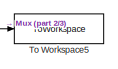
[diagram: root canvas - part 1/3, top center region]
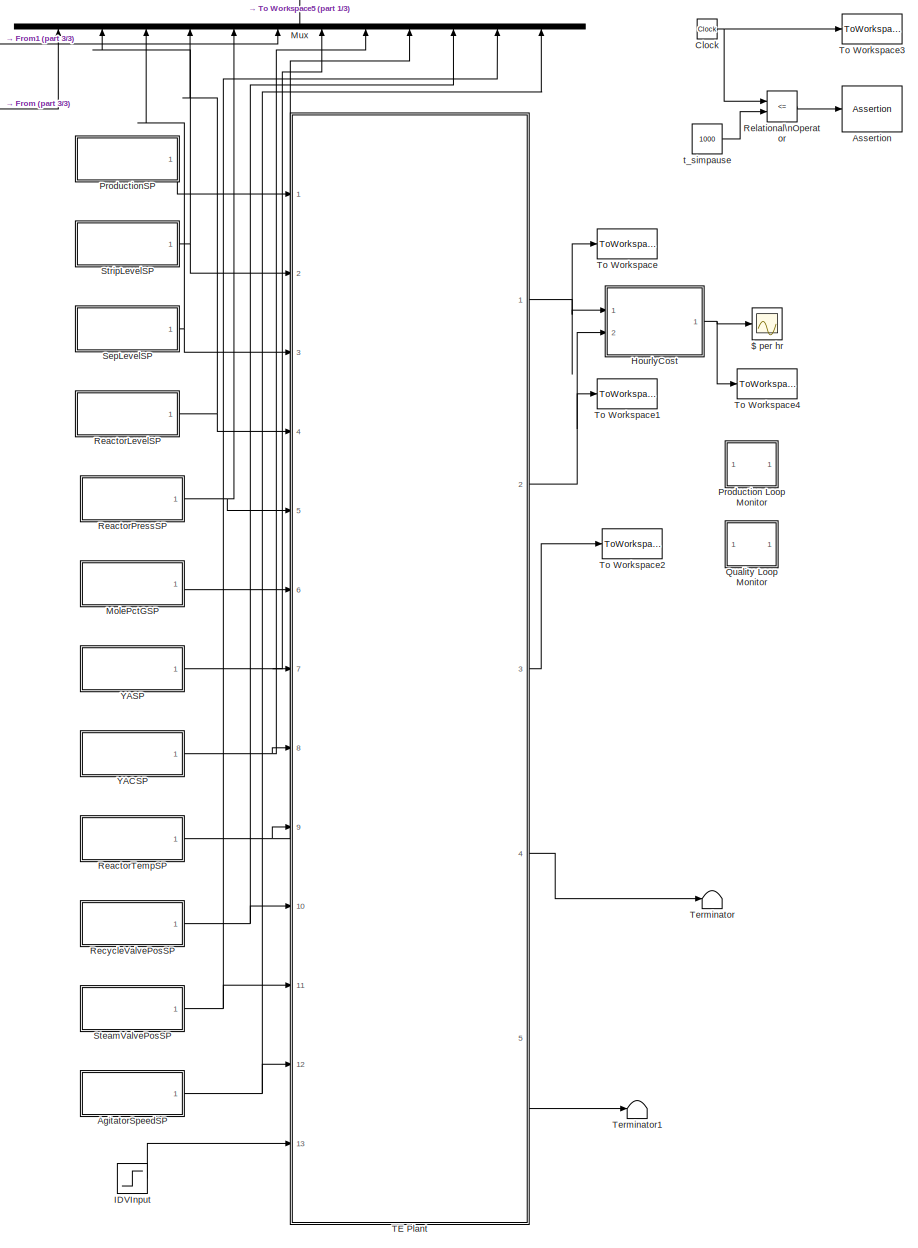
[diagram: root canvas - part 2/3, most of the canvas]
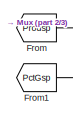
[diagram: root canvas - part 3/3, top left region]
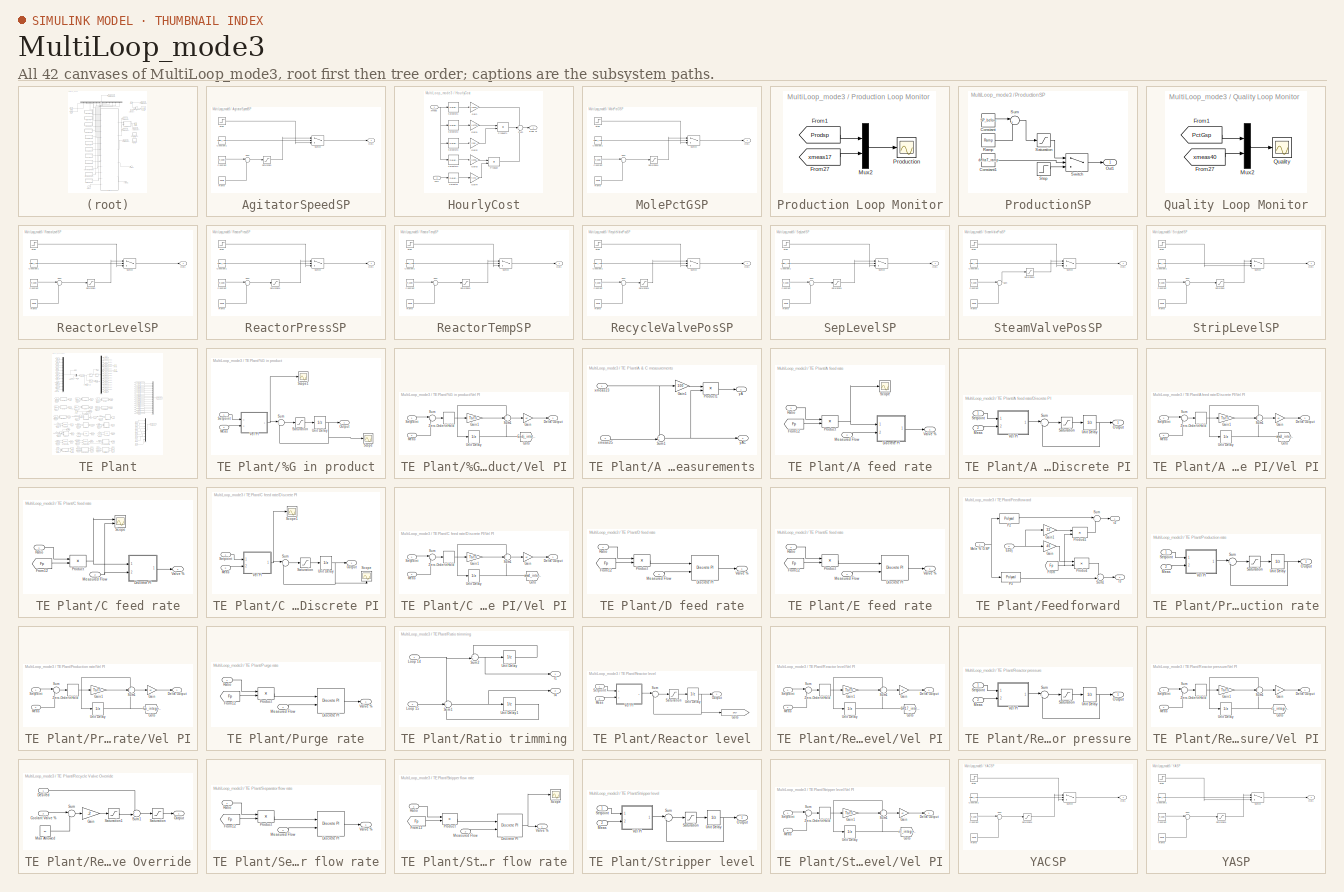
[diagram: thumbnail index - all 42 canvases of the model, root first then tree order]
MODEL MultiLoop_mode3
KIND model
BLOCK [Scope] $ per hr
  Floating = off
  NumInputPorts = 1
  Ports = [1]
  SID = 1
  ScopeSpecificationString = Simulink.scopes.TimeScopeBlockCfg('CurrentConfiguration', extmgr.ConfigurationSet(extmgr.Configuration('Core','General UI',true),extmgr.Configuration('Core','Source UI',true),extmgr.Configuration('Sources','WiredSimulink',true,'DataLoggingVariableName','OpCost','SampleTime','Ts_save','DataLoggingSaveFormat','Array','DataLoggingDecimation','1','DataLoggingDecimateData',true),extmgr.Configuration('V...<+1619ch>
BLOCK [SubSystem] AgitatorSpeedSP
  Ports = [0, 1]
  RequestExecContextInheritance = off
  SID = 429
BLOCK [Constant] AgitatorSpeedSP/Constant
  SID = 430
  Value = SP_before
BLOCK [Constant] AgitatorSpeedSP/Constant1
  SID = 431
  Value = deltaT_ramp
BLOCK [Outport] AgitatorSpeedSP/Out1
  IconDisplay = Port number
  SID = 436
  VectorParamsAs1DForOutWhenUnconnected = off
BLOCK [Reference] AgitatorSpeedSP/Ramp  REF=simulink/Sources/Ramp
  InitialOutput = 0
  Ports = [0, 1]
  RTWMemSecDataConstants = Inherit from model
  RTWMemSecDataInternal = Inherit from model
  RTWMemSecDataParameters = Inherit from model
  RTWMemSecFuncExecute = Inherit from model
  RTWMemSecFuncInitTerm = Inherit from model
  SID = 432
  SourceBlock = simulink/Sources/Ramp
  SourceProductBaseCode = SL
  SourceProductName = Simulink
  SourceType = Ramp
  VectorParams1D = on
  slope = (SP_after-SP_before) /max(deltaT_ramp,0.1)
  start = tRampStart
BLOCK [Saturate] AgitatorSpeedSP/Saturation
  InputPortMap = u0
  LowerLimit = min(SP_before, SP_after)
  Ports = [1, 1]
  SID = 461
  UpperLimit = max(SP_before, SP_after)
BLOCK [Step] AgitatorSpeedSP/Step
  After = SP_after
  Before = SP_before
  SID = 433
  SampleTime = 0
  Time = tRampStart
BLOCK [Sum] AgitatorSpeedSP/Sum
  IconShape = round
  InputSameDT = off
  Inputs = |++
  OutDataTypeStr = Inherit: Inherit via internal rule
  Ports = [2, 1]
  SID = 434
  SaturateOnIntegerOverflow = off
BLOCK [Switch] AgitatorSpeedSP/Switch
  Criteria = u2 > Threshold
  InputSameDT = off
  SID = 435
  SaturateOnIntegerOverflow = off
BLOCK [Assertion] Assertion
  AssertionFailFcn = set_param(gcs ,'SimulationCommand','pause')
  SID = 535
  StopWhenAssertionFail = off
BLOCK [Clock] Clock
  SID = 2
BLOCK [From] From
  GotoTag = Prodsp
  SID = 532
  TagVisibility = global
BLOCK [From] From1
  GotoTag = PctGsp
  SID = 536
  TagVisibility = global
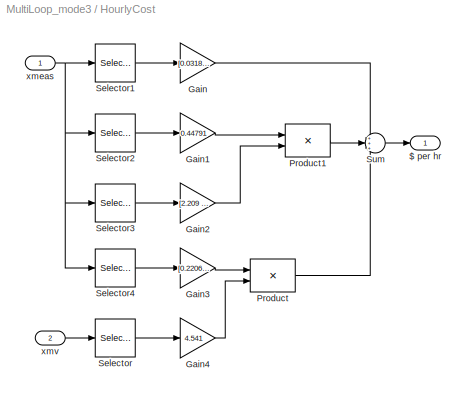
BLOCK [SubSystem] HourlyCost
  Ports = [2, 1]
  RequestExecContextInheritance = off
  SID = 4
BLOCK [Outport] HourlyCost/$ per hr
  IconDisplay = Port number
  SID = 20
  VectorParamsAs1DForOutWhenUnconnected = off
BLOCK [Gain] HourlyCost/Gain
  Gain = [0.0318, 0.0536]
  Multiplication = Matrix(K*u)
  SID = 7
BLOCK [Gain] HourlyCost/Gain1
  Gain = 0.44791
  SID = 8
BLOCK [Gain] HourlyCost/Gain2
  Gain = [2.209 6.177 22.06 14.56 17.89 30.44 22.94]
  Multiplication = Matrix(K*u)
  SID = 9
BLOCK [Gain] HourlyCost/Gain3
  Gain = [0.2206 0.1456 0.1789]
  Multiplication = Matrix(K*u)
  SID = 10
BLOCK [Gain] HourlyCost/Gain4
  Gain = 4.541
  SID = 11
BLOCK [Product] HourlyCost/Product
  InputSameDT = off
  Ports = [2, 1]
  RndMeth = Floor
  SID = 12
BLOCK [Product] HourlyCost/Product1
  InputSameDT = off
  Ports = [2, 1]
  RndMeth = Floor
  SID = 13
BLOCK [Selector] HourlyCost/Selector
  IndexOptions = Index vector (dialog)
  Indices = 8
  InputPortWidth = 12
  OutputSizes = 1
  Ports = [1, 1]
  SID = 14
BLOCK [Selector] HourlyCost/Selector1
  IndexOptions = Index vector (dialog)
  Indices = [19 20]
  InputPortWidth = 41
  OutputSizes = 1
  Ports = [1, 1]
  SID = 15
BLOCK [Selector] HourlyCost/Selector2
  IndexOptions = Index vector (dialog)
  Indices = [10]
  InputPortWidth = 41
  OutputSizes = 1
  Ports = [1, 1]
  SID = 16
BLOCK [Selector] HourlyCost/Selector3
  IndexOptions = Index vector (dialog)
  Indices = [29, 31:36]
  InputPortWidth = 41
  OutputSizes = 1
  Ports = [1, 1]
  SID = 17
BLOCK [Selector] HourlyCost/Selector4
  IndexOptions = Index vector (dialog)
  Indices = [37:39]
  InputPortWidth = 41
  OutputSizes = 1
  Ports = [1, 1]
  SID = 18
BLOCK [Sum] HourlyCost/Sum
  IconShape = round
  InputSameDT = off
  Inputs = +++
  OutDataTypeStr = Inherit: Inherit via internal rule
  Ports = [3, 1]
  SID = 19
BLOCK [Inport] HourlyCost/xmeas
  IconDisplay = Port number
  PortDimensions = 41
  SID = 5
BLOCK [Inport] HourlyCost/xmv
  IconDisplay = Port number
  Port = 2
  PortDimensions = 12
  SID = 6
BLOCK [Step] IDVInput
  After = idv_init(2,:)
  Before = idv_init(1,:)
  SID = 462
  SampleTime = 0
  Time = idv_init(3,:)
BLOCK [SubSystem] MolePctGSP
  Ports = [0, 1]
  RequestExecContextInheritance = off
  SID = 381
BLOCK [Constant] MolePctGSP/Constant
  SID = 382
  Value = SP_before
BLOCK [Constant] MolePctGSP/Constant1
  SID = 383
  Value = deltaT_ramp
BLOCK [Outport] MolePctGSP/Out1
  IconDisplay = Port number
  SID = 388
  VectorParamsAs1DForOutWhenUnconnected = off
BLOCK [Reference] MolePctGSP/Ramp  REF=simulink/Sources/Ramp
  InitialOutput = 0
  Ports = [0, 1]
  RTWMemSecDataConstants = Inherit from model
  RTWMemSecDataInternal = Inherit from model
  RTWMemSecDataParameters = Inherit from model
  RTWMemSecFuncExecute = Inherit from model
  RTWMemSecFuncInitTerm = Inherit from model
  SID = 384
  SourceBlock = simulink/Sources/Ramp
  SourceProductBaseCode = SL
  SourceProductName = Simulink
  SourceType = Ramp
  VectorParams1D = on
  slope = (SP_after-SP_before) /max(deltaT_ramp,0.1)
  start = tRampStart
BLOCK [Saturate] MolePctGSP/Saturation1
  InputPortMap = u0
  LowerLimit = min(SP_before, SP_after)
  Ports = [1, 1]
  SID = 455
  UpperLimit = max(SP_before, SP_after)
BLOCK [Step] MolePctGSP/Step
  After = SP_after
  Before = SP_before
  SID = 385
  SampleTime = 0
  Time = tRampStart
BLOCK [Sum] MolePctGSP/Sum
  IconShape = round
  InputSameDT = off
  Inputs = |++
  OutDataTypeStr = Inherit: Inherit via internal rule
  Ports = [2, 1]
  SID = 386
  SaturateOnIntegerOverflow = off
BLOCK [Switch] MolePctGSP/Switch
  Criteria = u2 > Threshold
  InputSameDT = off
  SID = 387
  SaturateOnIntegerOverflow = off
BLOCK [Mux] Mux
  DisplayOption = bar
  Inputs = 12
  Ports = [12, 1]
  SID = 463
BLOCK [SubSystem] Production Loop Monitor
  Ports = []
  RequestExecContextInheritance = off
  SID = 21
BLOCK [From] Production Loop Monitor/From1
  CloseFcn = tagdialog Close
  GotoTag = Prodsp
  SID = 22
  TagVisibility = global
BLOCK [From] Production Loop Monitor/From27
  CloseFcn = tagdialog Close
  GotoTag = xmeas17
  SID = 23
  TagVisibility = global
BLOCK [Mux] Production Loop Monitor/Mux2
  DisplayOption = bar
  Inputs = 2
  Ports = [2, 1]
  SID = 24
BLOCK [Scope] Production Loop Monitor/Production
  Floating = off
  NumInputPorts = 1
  Ports = [1]
  SID = 25
  ScopeSpecificationString = Simulink.scopes.TimeScopeBlockCfg('CurrentConfiguration', extmgr.ConfigurationSet(extmgr.Configuration('Core','General UI',true),extmgr.Configuration('Core','Source UI',true),extmgr.Configuration('Sources','WiredSimulink',true,'DataLogging',true,'DataLoggingVariableName','Production','DataLoggingSaveFormat','StructureWithTime','SampleTime','Ts_save','DataLoggingDecimation','1','DataLoggingDecimate...<+1654ch>
BLOCK [SubSystem] ProductionSP
  Ports = [0, 1]
  RequestExecContextInheritance = off
  SID = 278
BLOCK [Constant] ProductionSP/Constant
  SID = 283
  Value = SP_before
BLOCK [Constant] ProductionSP/Constant1
  SID = 347
  Value = deltaT_ramp
BLOCK [Outport] ProductionSP/Out1
  IconDisplay = Port number
  SID = 280
  VectorParamsAs1DForOutWhenUnconnected = off
BLOCK [Reference] ProductionSP/Ramp  REF=simulink/Sources/Ramp
  InitialOutput = 0
  Ports = [0, 1]
  RTWMemSecDataConstants = Inherit from model
  RTWMemSecDataInternal = Inherit from model
  RTWMemSecDataParameters = Inherit from model
  RTWMemSecFuncExecute = Inherit from model
  RTWMemSecFuncInitTerm = Inherit from model
  SID = 281
  SourceBlock = simulink/Sources/Ramp
  SourceProductBaseCode = SL
  SourceProductName = Simulink
  SourceType = Ramp
  VectorParams1D = on
  slope = (SP_after-SP_before) /max(deltaT_ramp,0.1)
  start = tRampStart
BLOCK [Saturate] ProductionSP/Saturation
  InputPortMap = u0
  LowerLimit = min(SP_before, SP_after)
  Ports = [1, 1]
  SID = 439
  UpperLimit = max(SP_before, SP_after)
BLOCK [Step] ProductionSP/Step
  After = SP_after
  Before = SP_before
  SID = 345
  SampleTime = 0
  Time = tRampStart
BLOCK [Sum] ProductionSP/Sum
  IconShape = round
  InputSameDT = off
  Inputs = |++
  OutDataTypeStr = Inherit: Inherit via internal rule
  Ports = [2, 1]
  SID = 284
  SaturateOnIntegerOverflow = off
BLOCK [Switch] ProductionSP/Switch
  Criteria = u2 > Threshold
  InputSameDT = off
  SID = 346
  SaturateOnIntegerOverflow = off
BLOCK [SubSystem] Quality Loop Monitor
  Ports = []
  RequestExecContextInheritance = off
  SID = 26
BLOCK [From] Quality Loop Monitor/From1
  CloseFcn = tagdialog Close
  GotoTag = PctGsp
  SID = 27
  TagVisibility = global
BLOCK [From] Quality Loop Monitor/From27
  CloseFcn = tagdialog Close
  GotoTag = xmeas40
  SID = 28
  TagVisibility = global
BLOCK [Mux] Quality Loop Monitor/Mux2
  DisplayOption = bar
  Inputs = 2
  Ports = [2, 1]
  SID = 29
BLOCK [Scope] Quality Loop Monitor/Quality
  Floating = off
  NumInputPorts = 1
  Ports = [1]
  SID = 30
  ScopeSpecificationString = Simulink.scopes.TimeScopeBlockCfg('CurrentConfiguration', extmgr.ConfigurationSet(extmgr.Configuration('Core','General UI',true),extmgr.Configuration('Core','Source UI',true),extmgr.Configuration('Sources','WiredSimulink',true,'DataLogging',true,'DataLoggingVariableName','Quality','DataLoggingSaveFormat','StructureWithTime','SampleTime','Ts_save','DataLoggingDecimation','1','DataLoggingDecimateDat...<+1655ch>
BLOCK [SubSystem] ReactorLevelSP
  Ports = [0, 1]
  RequestExecContextInheritance = off
  SID = 365
BLOCK [Constant] ReactorLevelSP/Constant
  SID = 366
  Value = SP_before
BLOCK [Constant] ReactorLevelSP/Constant1
  SID = 367
  Value = deltaT_ramp
BLOCK [Outport] ReactorLevelSP/Out1
  IconDisplay = Port number
  SID = 372
  VectorParamsAs1DForOutWhenUnconnected = off
BLOCK [Reference] ReactorLevelSP/Ramp  REF=simulink/Sources/Ramp
  InitialOutput = 0
  Ports = [0, 1]
  RTWMemSecDataConstants = Inherit from model
  RTWMemSecDataInternal = Inherit from model
  RTWMemSecDataParameters = Inherit from model
  RTWMemSecFuncExecute = Inherit from model
  RTWMemSecFuncInitTerm = Inherit from model
  SID = 368
  SourceBlock = simulink/Sources/Ramp
  SourceProductBaseCode = SL
  SourceProductName = Simulink
  SourceType = Ramp
  VectorParams1D = on
  slope = (SP_after-SP_before) /max(deltaT_ramp,0.1)
  start = tRampStart
BLOCK [Saturate] ReactorLevelSP/Saturation
  InputPortMap = u0
  LowerLimit = min(SP_before, SP_after)
  Ports = [1, 1]
  SID = 453
  UpperLimit = max(SP_before, SP_after)
BLOCK [Step] ReactorLevelSP/Step
  After = SP_after
  Before = SP_before
  SID = 369
  SampleTime = 0
  Time = tRampStart
BLOCK [Sum] ReactorLevelSP/Sum
  IconShape = round
  InputSameDT = off
  Inputs = |++
  OutDataTypeStr = Inherit: Inherit via internal rule
  Ports = [2, 1]
  SID = 370
  SaturateOnIntegerOverflow = off
BLOCK [Switch] ReactorLevelSP/Switch
  Criteria = u2 > Threshold
  InputSameDT = off
  SID = 371
  SaturateOnIntegerOverflow = off
BLOCK [SubSystem] ReactorPressSP
  Ports = [0, 1]
  RequestExecContextInheritance = off
  SID = 373
BLOCK [Constant] ReactorPressSP/Constant
  SID = 374
  Value = SP_before
BLOCK [Constant] ReactorPressSP/Constant1
  SID = 375
  Value = deltaT_ramp
BLOCK [Outport] ReactorPressSP/Out1
  IconDisplay = Port number
  SID = 380
  VectorParamsAs1DForOutWhenUnconnected = off
BLOCK [Reference] ReactorPressSP/Ramp  REF=simulink/Sources/Ramp
  InitialOutput = 0
  Ports = [0, 1]
  RTWMemSecDataConstants = Inherit from model
  RTWMemSecDataInternal = Inherit from model
  RTWMemSecDataParameters = Inherit from model
  RTWMemSecFuncExecute = Inherit from model
  RTWMemSecFuncInitTerm = Inherit from model
  SID = 376
  SourceBlock = simulink/Sources/Ramp
  SourceProductBaseCode = SL
  SourceProductName = Simulink
  SourceType = Ramp
  VectorParams1D = on
  slope = (SP_after-SP_before) /max(deltaT_ramp,0.1)
  start = tRampStart
BLOCK [Saturate] ReactorPressSP/Saturation1
  InputPortMap = u0
  LowerLimit = min(SP_before, SP_after)
  Ports = [1, 1]
  SID = 454
  UpperLimit = max(SP_before, SP_after)
BLOCK [Step] ReactorPressSP/Step
  After = SP_after
  Before = SP_before
  SID = 377
  SampleTime = 0
  Time = tRampStart
BLOCK [Sum] ReactorPressSP/Sum
  IconShape = round
  InputSameDT = off
  Inputs = |++
  OutDataTypeStr = Inherit: Inherit via internal rule
  Ports = [2, 1]
  SID = 378
  SaturateOnIntegerOverflow = off
BLOCK [Switch] ReactorPressSP/Switch
  Criteria = u2 > Threshold
  InputSameDT = off
  SID = 379
  SaturateOnIntegerOverflow = off
BLOCK [SubSystem] ReactorTempSP
  Ports = [0, 1]
  RequestExecContextInheritance = off
  SID = 405
BLOCK [Constant] ReactorTempSP/Constant
  SID = 406
  Value = SP_before
BLOCK [Constant] ReactorTempSP/Constant1
  SID = 407
  Value = deltaT_ramp
BLOCK [Outport] ReactorTempSP/Out1
  IconDisplay = Port number
  SID = 412
  VectorParamsAs1DForOutWhenUnconnected = off
BLOCK [Reference] ReactorTempSP/Ramp  REF=simulink/Sources/Ramp
  InitialOutput = 0
  Ports = [0, 1]
  RTWMemSecDataConstants = Inherit from model
  RTWMemSecDataInternal = Inherit from model
  RTWMemSecDataParameters = Inherit from model
  RTWMemSecFuncExecute = Inherit from model
  RTWMemSecFuncInitTerm = Inherit from model
  SID = 408
  SourceBlock = simulink/Sources/Ramp
  SourceProductBaseCode = SL
  SourceProductName = Simulink
  SourceType = Ramp
  VectorParams1D = on
  slope = (SP_after-SP_before) /max(deltaT_ramp,0.1)
  start = tRampStart
BLOCK [Saturate] ReactorTempSP/Saturation1
  InputPortMap = u0
  LowerLimit = min(SP_before, SP_after)
  Ports = [1, 1]
  SID = 458
  UpperLimit = max(SP_before, SP_after)
BLOCK [Step] ReactorTempSP/Step
  After = SP_after
  Before = SP_before
  SID = 409
  SampleTime = 0
  Time = tRampStart
BLOCK [Sum] ReactorTempSP/Sum
  IconShape = round
  InputSameDT = off
  Inputs = |++
  OutDataTypeStr = Inherit: Inherit via internal rule
  Ports = [2, 1]
  SID = 410
  SaturateOnIntegerOverflow = off
BLOCK [Switch] ReactorTempSP/Switch
  Criteria = u2 > Threshold
  InputSameDT = off
  SID = 411
  SaturateOnIntegerOverflow = off
BLOCK [SubSystem] RecycleValvePosSP
  Ports = [0, 1]
  RequestExecContextInheritance = off
  SID = 413
BLOCK [Constant] RecycleValvePosSP/Constant
  SID = 414
  Value = SP_before
BLOCK [Constant] RecycleValvePosSP/Constant1
  SID = 415
  Value = deltaT_ramp
BLOCK [Outport] RecycleValvePosSP/Out1
  IconDisplay = Port number
  SID = 420
  VectorParamsAs1DForOutWhenUnconnected = off
BLOCK [Reference] RecycleValvePosSP/Ramp  REF=simulink/Sources/Ramp
  InitialOutput = 0
  Ports = [0, 1]
  RTWMemSecDataConstants = Inherit from model
  RTWMemSecDataInternal = Inherit from model
  RTWMemSecDataParameters = Inherit from model
  RTWMemSecFuncExecute = Inherit from model
  RTWMemSecFuncInitTerm = Inherit from model
  SID = 416
  SourceBlock = simulink/Sources/Ramp
  SourceProductBaseCode = SL
  SourceProductName = Simulink
  SourceType = Ramp
  VectorParams1D = on
  slope = (SP_after-SP_before) /max(deltaT_ramp,0.1)
  start = tRampStart
BLOCK [Saturate] RecycleValvePosSP/Saturation1
  InputPortMap = u0
  LowerLimit = min(SP_before, SP_after)
  Ports = [1, 1]
  SID = 459
  UpperLimit = max(SP_before, SP_after)
BLOCK [Step] RecycleValvePosSP/Step
  After = SP_after
  Before = SP_before
  SID = 417
  SampleTime = 0
  Time = tRampStart
BLOCK [Sum] RecycleValvePosSP/Sum
  IconShape = round
  InputSameDT = off
  Inputs = |++
  OutDataTypeStr = Inherit: Inherit via internal rule
  Ports = [2, 1]
  SID = 418
  SaturateOnIntegerOverflow = off
BLOCK [Switch] RecycleValvePosSP/Switch
  Criteria = u2 > Threshold
  InputSameDT = off
  SID = 419
  SaturateOnIntegerOverflow = off
BLOCK [RelationalOperator] Relational\nOperator
  InputSameDT = off
  Operator = <=
  OutDataTypeStr = boolean
  Ports = [2, 1]
  RndMeth = Simplest
  SID = 538
BLOCK [SubSystem] SepLevelSP
  Ports = [0, 1]
  RequestExecContextInheritance = off
  SID = 357
BLOCK [Constant] SepLevelSP/Constant
  SID = 358
  Value = SP_before
BLOCK [Constant] SepLevelSP/Constant1
  SID = 359
  Value = deltaT_ramp
BLOCK [Outport] SepLevelSP/Out1
  IconDisplay = Port number
  SID = 364
  VectorParamsAs1DForOutWhenUnconnected = off
BLOCK [Reference] SepLevelSP/Ramp  REF=simulink/Sources/Ramp
  InitialOutput = 0
  Ports = [0, 1]
  RTWMemSecDataConstants = Inherit from model
  RTWMemSecDataInternal = Inherit from model
  RTWMemSecDataParameters = Inherit from model
  RTWMemSecFuncExecute = Inherit from model
  RTWMemSecFuncInitTerm = Inherit from model
  SID = 360
  SourceBlock = simulink/Sources/Ramp
  SourceProductBaseCode = SL
  SourceProductName = Simulink
  SourceType = Ramp
  VectorParams1D = on
  slope = (SP_after-SP_before) /max(deltaT_ramp,0.1)
  start = tRampStart
BLOCK [Saturate] SepLevelSP/Saturation1
  InputPortMap = u0
  LowerLimit = min(SP_before, SP_after)
  Ports = [1, 1]
  SID = 452
  UpperLimit = max(SP_before, SP_after)
BLOCK [Step] SepLevelSP/Step
  After = SP_after
  Before = SP_before
  SID = 361
  SampleTime = 0
  Time = tRampStart
BLOCK [Sum] SepLevelSP/Sum
  IconShape = round
  InputSameDT = off
  Inputs = |++
  OutDataTypeStr = Inherit: Inherit via internal rule
  Ports = [2, 1]
  SID = 362
  SaturateOnIntegerOverflow = off
BLOCK [Switch] SepLevelSP/Switch
  Criteria = u2 > Threshold
  InputSameDT = off
  SID = 363
  SaturateOnIntegerOverflow = off
BLOCK [SubSystem] SteamValvePosSP
  Ports = [0, 1]
  RequestExecContextInheritance = off
  SID = 421
BLOCK [Constant] SteamValvePosSP/Constant
  SID = 422
  Value = SP_before
BLOCK [Constant] SteamValvePosSP/Constant1
  SID = 423
  Value = deltaT_ramp
BLOCK [Outport] SteamValvePosSP/Out1
  IconDisplay = Port number
  SID = 428
  VectorParamsAs1DForOutWhenUnconnected = off
BLOCK [Reference] SteamValvePosSP/Ramp  REF=simulink/Sources/Ramp
  InitialOutput = 0
  Ports = [0, 1]
  RTWMemSecDataConstants = Inherit from model
  RTWMemSecDataInternal = Inherit from model
  RTWMemSecDataParameters = Inherit from model
  RTWMemSecFuncExecute = Inherit from model
  RTWMemSecFuncInitTerm = Inherit from model
  SID = 424
  SourceBlock = simulink/Sources/Ramp
  SourceProductBaseCode = SL
  SourceProductName = Simulink
  SourceType = Ramp
  VectorParams1D = on
  slope = (SP_after-SP_before) /max(deltaT_ramp,0.1)
  start = tRampStart
BLOCK [Saturate] SteamValvePosSP/Saturation1
  InputPortMap = u0
  LowerLimit = min(SP_before, SP_after)
  Ports = [1, 1]
  SID = 460
  UpperLimit = max(SP_before, SP_after)
BLOCK [Step] SteamValvePosSP/Step
  After = SP_after
  Before = SP_before
  SID = 425
  SampleTime = 0
  Time = tRampStart
BLOCK [Sum] SteamValvePosSP/Sum
  IconShape = round
  InputSameDT = off
  Inputs = |++
  OutDataTypeStr = Inherit: Inherit via internal rule
  Ports = [2, 1]
  SID = 426
  SaturateOnIntegerOverflow = off
BLOCK [Switch] SteamValvePosSP/Switch
  Criteria = u2 > Threshold
  InputSameDT = off
  SID = 427
  SaturateOnIntegerOverflow = off
BLOCK [SubSystem] StripLevelSP
  Ports = [0, 1]
  RequestExecContextInheritance = off
  SID = 349
BLOCK [Constant] StripLevelSP/Constant
  SID = 350
  Value = SP_before
BLOCK [Constant] StripLevelSP/Constant1
  SID = 351
  Value = deltaT_ramp
BLOCK [Outport] StripLevelSP/Out1
  IconDisplay = Port number
  SID = 356
  VectorParamsAs1DForOutWhenUnconnected = off
BLOCK [Reference] StripLevelSP/Ramp  REF=simulink/Sources/Ramp
  InitialOutput = 0
  Ports = [0, 1]
  RTWMemSecDataConstants = Inherit from model
  RTWMemSecDataInternal = Inherit from model
  RTWMemSecDataParameters = Inherit from model
  RTWMemSecFuncExecute = Inherit from model
  RTWMemSecFuncInitTerm = Inherit from model
  SID = 352
  SourceBlock = simulink/Sources/Ramp
  SourceProductBaseCode = SL
  SourceProductName = Simulink
  SourceType = Ramp
  VectorParams1D = on
  slope = (SP_after-SP_before) /max(deltaT_ramp,0.1)
  start = tRampStart
BLOCK [Saturate] StripLevelSP/Saturation
  InputPortMap = u0
  LowerLimit = min(SP_before, SP_after)
  Ports = [1, 1]
  SID = 451
  UpperLimit = max(SP_before, SP_after)
BLOCK [Step] StripLevelSP/Step
  After = SP_after
  Before = SP_before
  SID = 353
  SampleTime = 0
  Time = tRampStart
BLOCK [Sum] StripLevelSP/Sum
  IconShape = round
  InputSameDT = off
  Inputs = |++
  OutDataTypeStr = Inherit: Inherit via internal rule
  Ports = [2, 1]
  SID = 354
  SaturateOnIntegerOverflow = off
BLOCK [Switch] StripLevelSP/Switch
  Criteria = u2 > Threshold
  InputSameDT = off
  SID = 355
  SaturateOnIntegerOverflow = off
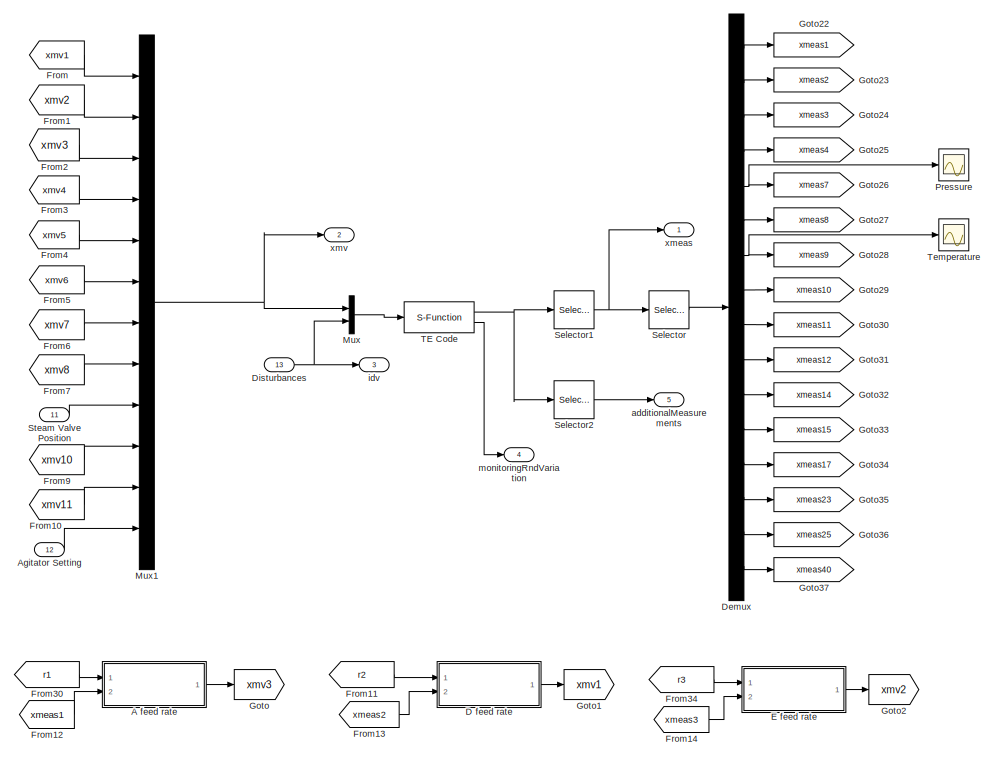
[diagram: TE Plant - part 1/3, top left region]
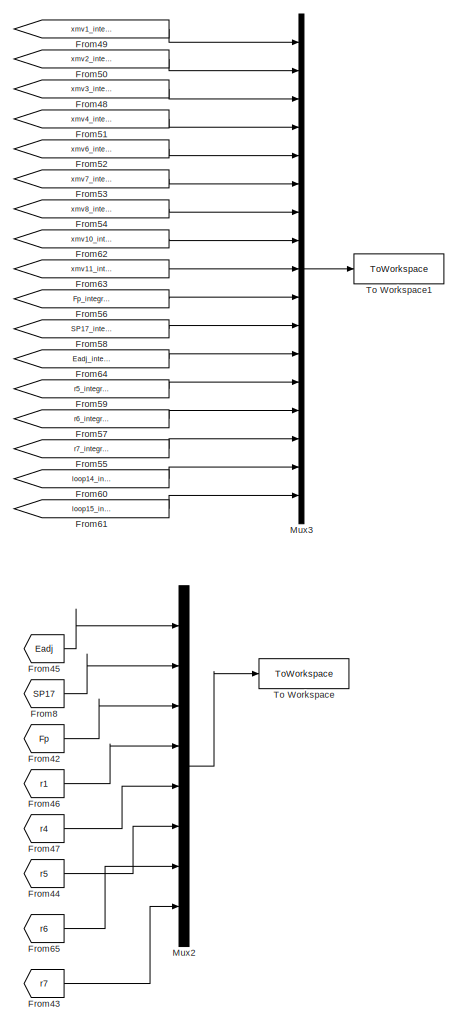
[diagram: TE Plant - part 2/3, middle right region]
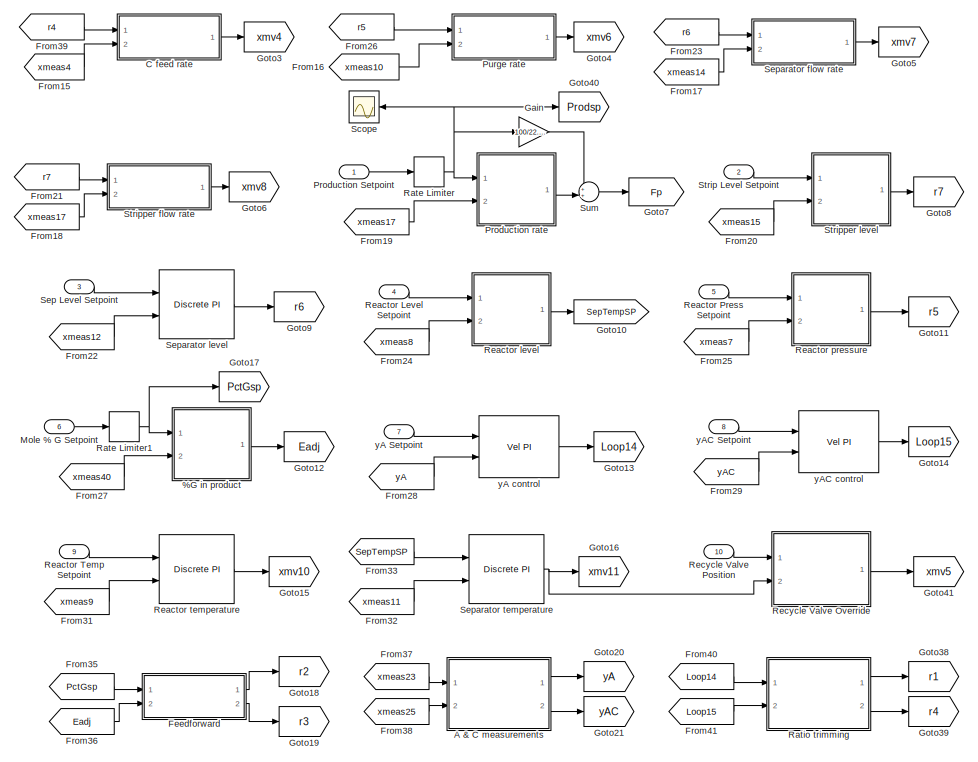
[diagram: TE Plant - part 3/3, bottom left region]
BLOCK [SubSystem] TE Plant
  Ports = [13, 5]
  RequestExecContextInheritance = off
  SID = 31
BLOCK [SubSystem] TE Plant/%G in product
  AncestorBlock = TElib/Discrete PI
  Ports = [2, 1]
  RequestExecContextInheritance = off
  SID = 45
BLOCK [Inport] TE Plant/%G in product/Meas
  IconDisplay = Port number
  Port = 2
  SID = 45:3
BLOCK [Outport] TE Plant/%G in product/Output
  IconDisplay = Port number
  SID = 45:17
BLOCK [Saturate] TE Plant/%G in product/Saturation
  InputPortMap = u0
  LowerLimit = Lo
  Ports = [1, 1]
  SID = 45:4
  UpperLimit = Hi
BLOCK [Scope] TE Plant/%G in product/Scope
  Floating = off
  NumInputPorts = 1
  Ports = [1]
  SID = 45:22
  ScopeSpecificationString = Simulink.scopes.TimeScopeBlockCfg('CurrentConfiguration', extmgr.ConfigurationSet(extmgr.Configuration('Core','General UI',true),extmgr.Configuration('Core','Source UI',true),extmgr.Configuration('Sources','WiredSimulink',true,'DataLoggingVariableName','ScopeData2'),extmgr.Configuration('Visuals','Time Domain',true,'SerializedDisplays',{struct('MinYLimReal','0.3596864151','MaxYLimReal','0.35968642...<+1459ch>
BLOCK [Scope] TE Plant/%G in product/Scope1
  Floating = off
  NumInputPorts = 1
  Ports = [1]
  SID = 45:23
  ScopeSpecificationString = Simulink.scopes.TimeScopeBlockCfg('CurrentConfiguration', extmgr.ConfigurationSet(extmgr.Configuration('Core','General UI',true),extmgr.Configuration('Core','Source UI',true),extmgr.Configuration('Sources','WiredSimulink',true,'DataLoggingVariableName','ScopeData3'),extmgr.Configuration('Visuals','Time Domain',true,'SerializedDisplays',{struct('MinYLimReal','-0.000000000004','MaxYLimReal','0.00000...<+1467ch>
BLOCK [Inport] TE Plant/%G in product/Setpoint
  IconDisplay = Port number
  SID = 45:2
BLOCK [Sum] TE Plant/%G in product/Sum
  IconShape = round
  InputSameDT = off
  Inputs = |++
  OutDataTypeStr = Inherit: Inherit via internal rule
  Ports = [2, 1]
  SID = 45:5
BLOCK [UnitDelay] TE Plant/%G in product/Unit Delay
  InitialCondition = x0
  SID = 45:6
  SampleTime = Ts
BLOCK [SubSystem] TE Plant/%G in product/Vel PI
  Ports = [2, 1]
  RequestExecContextInheritance = off
  SID = 45:7
BLOCK [Outport] TE Plant/%G in product/Vel PI/Delta Output
  IconDisplay = Port number
  SID = 45:16
BLOCK [Gain] TE Plant/%G in product/Vel PI/Gain
  Gain = Kc
  SID = 45:10
BLOCK [Gain] TE Plant/%G in product/Vel PI/Gain1
  Gain = Ts/Ti
  SID = 45:11
BLOCK [Goto] TE Plant/%G in product/Vel PI/Goto
  GotoTag = Eadj_integrator
  SID = 45:21
  TagVisibility = global
BLOCK [Inport] TE Plant/%G in product/Vel PI/Meas
  IconDisplay = Port number
  Port = 2
  SID = 45:9
BLOCK [Inport] TE Plant/%G in product/Vel PI/Setpoint
  IconDisplay = Port number
  SID = 45:8
BLOCK [Sum] TE Plant/%G in product/Vel PI/Sum
  IconShape = round
  InputSameDT = off
  Inputs = |+-
  OutDataTypeStr = Inherit: Inherit via internal rule
  Ports = [2, 1]
  SID = 45:12
BLOCK [Sum] TE Plant/%G in product/Vel PI/Sum1
  IconShape = round
  InputSameDT = off
  Inputs = ++-
  OutDataTypeStr = Inherit: Inherit via internal rule
  Ports = [3, 1]
  SID = 45:13
BLOCK [UnitDelay] TE Plant/%G in product/Vel PI/Unit Delay
  InitialCondition = integrator_init(12)
  SID = 45:14
  SampleTime = Ts
BLOCK [ZeroOrderHold] TE Plant/%G in product/Vel PI/Zero-Order\nHold
  SID = 45:15
  SampleTime = Ts
BLOCK [SubSystem] TE Plant/A & C measurements
  Ports = [2, 2]
  RequestExecContextInheritance = off
  SID = 46
BLOCK [Gain] TE Plant/A & C measurements/Gain1
  Gain = 100
  SID = 49
BLOCK [Product] TE Plant/A & C measurements/Product1
  InputSameDT = off
  Inputs = */
  Ports = [2, 1]
  RndMeth = Floor
  SID = 50
BLOCK [Sum] TE Plant/A & C measurements/Sum1
  IconShape = round
  InputSameDT = off
  Inputs = ++|
  OutDataTypeStr = Inherit: Inherit via internal rule
  Ports = [2, 1]
  SID = 51
BLOCK [Inport] TE Plant/A & C measurements/xmeas23
  IconDisplay = Port number
  SID = 47
BLOCK [Inport] TE Plant/A & C measurements/xmeas25
  IconDisplay = Port number
  Port = 2
  SID = 48
BLOCK [Outport] TE Plant/A & C measurements/yA
  IconDisplay = Port number
  SID = 52
  VectorParamsAs1DForOutWhenUnconnected = off
BLOCK [Outport] TE Plant/A & C measurements/yAC
  IconDisplay = Port number
  Port = 2
  SID = 53
  VectorParamsAs1DForOutWhenUnconnected = off
BLOCK [SubSystem] TE Plant/A feed rate
  Ports = [2, 1]
  RequestExecContextInheritance = off
  SID = 54
BLOCK [SubSystem] TE Plant/A feed rate/Discrete PI
  AncestorBlock = TElib/Discrete PI
  Ports = [2, 1]
  RequestExecContextInheritance = off
  SID = 57
BLOCK [Inport] TE Plant/A feed rate/Discrete PI/Meas
  IconDisplay = Port number
  Port = 2
  SID = 57:3
BLOCK [Outport] TE Plant/A feed rate/Discrete PI/Output
  IconDisplay = Port number
  SID = 57:17
BLOCK [Saturate] TE Plant/A feed rate/Discrete PI/Saturation
  InputPortMap = u0
  LowerLimit = Lo
  Ports = [1, 1]
  SID = 57:4
  UpperLimit = Hi
BLOCK [Inport] TE Plant/A feed rate/Discrete PI/Setpoint
  IconDisplay = Port number
  SID = 57:2
BLOCK [Sum] TE Plant/A feed rate/Discrete PI/Sum
  IconShape = round
  InputSameDT = off
  Inputs = |++
  OutDataTypeStr = Inherit: Inherit via internal rule
  Ports = [2, 1]
  SID = 57:5
BLOCK [UnitDelay] TE Plant/A feed rate/Discrete PI/Unit Delay
  InitialCondition = x0
  SID = 57:6
  SampleTime = Ts
BLOCK [SubSystem] TE Plant/A feed rate/Discrete PI/Vel PI
  Ports = [2, 1]
  RequestExecContextInheritance = off
  SID = 57:7
BLOCK [Outport] TE Plant/A feed rate/Discrete PI/Vel PI/Delta Output
  IconDisplay = Port number
  SID = 57:16
BLOCK [Gain] TE Plant/A feed rate/Discrete PI/Vel PI/Gain
  Gain = Kc
  SID = 57:10
BLOCK [Gain] TE Plant/A feed rate/Discrete PI/Vel PI/Gain1
  Gain = Ts/Ti
  SID = 57:11
BLOCK [Goto] TE Plant/A feed rate/Discrete PI/Vel PI/Goto
  GotoTag = xmv3_integrator
  SID = 57:20
  TagVisibility = global
BLOCK [Inport] TE Plant/A feed rate/Discrete PI/Vel PI/Meas
  IconDisplay = Port number
  Port = 2
  SID = 57:9
BLOCK [Inport] TE Plant/A feed rate/Discrete PI/Vel PI/Setpoint
  IconDisplay = Port number
  SID = 57:8
BLOCK [Sum] TE Plant/A feed rate/Discrete PI/Vel PI/Sum
  IconShape = round
  InputSameDT = off
  Inputs = |+-
  OutDataTypeStr = Inherit: Inherit via internal rule
  Ports = [2, 1]
  SID = 57:12
BLOCK [Sum] TE Plant/A feed rate/Discrete PI/Vel PI/Sum1
  IconShape = round
  InputSameDT = off
  Inputs = ++-
  OutDataTypeStr = Inherit: Inherit via internal rule
  Ports = [3, 1]
  SID = 57:13
BLOCK [UnitDelay] TE Plant/A feed rate/Discrete PI/Vel PI/Unit Delay
  InitialCondition = integrator_init(3)
  SID = 57:14
  SampleTime = Ts
BLOCK [ZeroOrderHold] TE Plant/A feed rate/Discrete PI/Vel PI/Zero-Order\nHold
  SID = 57:15
  SampleTime = Ts
BLOCK [From] TE Plant/A feed rate/From12
  CloseFcn = tagdialog Close
  GotoTag = Fp
  SID = 58
  TagVisibility = global
BLOCK [Inport] TE Plant/A feed rate/Measured Flow
  IconDisplay = Port number
  Port = 2
  SID = 56
BLOCK [Product] TE Plant/A feed rate/Product
  InputSameDT = off
  Ports = [2, 1]
  RndMeth = Floor
  SID = 59
BLOCK [Inport] TE Plant/A feed rate/Ratio
  IconDisplay = Port number
  SID = 55
BLOCK [Scope] TE Plant/A feed rate/Scope
  Floating = off
  NumInputPorts = 1
  Ports = [1]
  SID = 540
  ScopeSpecificationString = Simulink.scopes.TimeScopeBlockCfg('CurrentConfiguration', extmgr.ConfigurationSet(extmgr.Configuration('Core','General UI',true),extmgr.Configuration('Core','Source UI',true),extmgr.Configuration('Sources','WiredSimulink',true,'DataLoggingVariableName','ScopeData1'),extmgr.Configuration('Visuals','Time Domain',true,'SerializedDisplays',{struct('MinYLimReal','0.2667364','MaxYLimReal','0.2667384','Y...<+1409ch>
BLOCK [Outport] TE Plant/A feed rate/Valve %
  IconDisplay = Port number
  SID = 60
  VectorParamsAs1DForOutWhenUnconnected = off
BLOCK [Inport] TE Plant/Agitator Setting
  IconDisplay = Port number
  Port = 12
  SID = 43
BLOCK [SubSystem] TE Plant/C feed rate
  Ports = [2, 1]
  RequestExecContextInheritance = off
  SID = 61
BLOCK [SubSystem] TE Plant/C feed rate/Discrete PI
  AncestorBlock = TElib/Discrete PI
  Ports = [2, 1]
  RequestExecContextInheritance = off
  SID = 64
BLOCK [Inport] TE Plant/C feed rate/Discrete PI/Meas
  IconDisplay = Port number
  Port = 2
  SID = 64:3
BLOCK [Outport] TE Plant/C feed rate/Discrete PI/Output
  IconDisplay = Port number
  SID = 64:17
BLOCK [Saturate] TE Plant/C feed rate/Discrete PI/Saturation
  InputPortMap = u0
  LowerLimit = Lo
  Ports = [1, 1]
  SID = 64:4
  UpperLimit = Hi
BLOCK [Scope] TE Plant/C feed rate/Discrete PI/Scope
  Floating = off
  NumInputPorts = 1
  Ports = [1]
  SID = 64:21
  ScopeSpecificationString = Simulink.scopes.TimeScopeBlockCfg('CurrentConfiguration', extmgr.ConfigurationSet(extmgr.Configuration('Core','General UI',true),extmgr.Configuration('Core','Source UI',true),extmgr.Configuration('Sources','WiredSimulink',true,'DataLoggingVariableName','ScopeData4'),extmgr.Configuration('Visuals','Time Domain',true,'SerializedDisplays',{struct('MinYLimReal','59.04855','MaxYLimReal','60.75706','YLa...<+1429ch>
BLOCK [Scope] TE Plant/C feed rate/Discrete PI/Scope1
  Floating = off
  NumInputPorts = 1
  Ports = [1]
  SID = 64:22
  ScopeSpecificationString = Simulink.scopes.TimeScopeBlockCfg('CurrentConfiguration', extmgr.ConfigurationSet(extmgr.Configuration('Core','General UI',true),extmgr.Configuration('Core','Source UI',true),extmgr.Configuration('Sources','WiredSimulink',true,'DataLoggingVariableName','ScopeData5'),extmgr.Configuration('Visuals','Time Domain',true,'SerializedDisplays',{struct('MinYLimReal','-0.00088','MaxYLimReal','0.00083','YLab...<+1417ch>
BLOCK [Inport] TE Plant/C feed rate/Discrete PI/Setpoint
  IconDisplay = Port number
  SID = 64:2
BLOCK [Sum] TE Plant/C feed rate/Discrete PI/Sum
  IconShape = round
  InputSameDT = off
  Inputs = |++
  OutDataTypeStr = Inherit: Inherit via internal rule
  Ports = [2, 1]
  SID = 64:5
BLOCK [UnitDelay] TE Plant/C feed rate/Discrete PI/Unit Delay
  InitialCondition = x0
  SID = 64:6
  SampleTime = Ts
BLOCK [SubSystem] TE Plant/C feed rate/Discrete PI/Vel PI
  Ports = [2, 1]
  RequestExecContextInheritance = off
  SID = 64:7
BLOCK [Outport] TE Plant/C feed rate/Discrete PI/Vel PI/Delta Output
  IconDisplay = Port number
  SID = 64:16
BLOCK [Gain] TE Plant/C feed rate/Discrete PI/Vel PI/Gain
  Gain = Kc
  SID = 64:10
BLOCK [Gain] TE Plant/C feed rate/Discrete PI/Vel PI/Gain1
  Gain = Ts/Ti
  SID = 64:11
BLOCK [Goto] TE Plant/C feed rate/Discrete PI/Vel PI/Goto
  GotoTag = xmv4_integrator
  SID = 64:20
  TagVisibility = global
BLOCK [Inport] TE Plant/C feed rate/Discrete PI/Vel PI/Meas
  IconDisplay = Port number
  Port = 2
  SID = 64:9
BLOCK [Inport] TE Plant/C feed rate/Discrete PI/Vel PI/Setpoint
  IconDisplay = Port number
  SID = 64:8
BLOCK [Sum] TE Plant/C feed rate/Discrete PI/Vel PI/Sum
  IconShape = round
  InputSameDT = off
  Inputs = |+-
  OutDataTypeStr = Inherit: Inherit via internal rule
  Ports = [2, 1]
  SID = 64:12
BLOCK [Sum] TE Plant/C feed rate/Discrete PI/Vel PI/Sum1
  IconShape = round
  InputSameDT = off
  Inputs = ++-
  OutDataTypeStr = Inherit: Inherit via internal rule
  Ports = [3, 1]
  SID = 64:13
BLOCK [UnitDelay] TE Plant/C feed rate/Discrete PI/Vel PI/Unit Delay
  InitialCondition = 100
  SID = 64:14
  SampleTime = Ts
BLOCK [ZeroOrderHold] TE Plant/C feed rate/Discrete PI/Vel PI/Zero-Order\nHold
  SID = 64:15
  SampleTime = Ts
BLOCK [From] TE Plant/C feed rate/From12
  CloseFcn = tagdialog Close
  GotoTag = Fp
  SID = 65
  TagVisibility = global
BLOCK [Inport] TE Plant/C feed rate/Measured Flow
  IconDisplay = Port number
  Port = 2
  SID = 63
BLOCK [Product] TE Plant/C feed rate/Product
  InputSameDT = off
  Ports = [2, 1]
  RndMeth = Floor
  SID = 66
BLOCK [Inport] TE Plant/C feed rate/Ratio
  IconDisplay = Port number
  SID = 62
BLOCK [Scope] TE Plant/C feed rate/Scope
  Floating = off
  NumInputPorts = 2
  Ports = [2]
  SID = 513
  ScopeSpecificationString = Simulink.scopes.TimeScopeBlockCfg('CurrentConfiguration', extmgr.ConfigurationSet(extmgr.Configuration('Core','General UI',true),extmgr.Configuration('Core','Source UI',true),extmgr.Configuration('Sources','WiredSimulink',true,'DataLoggingVariableName','ScopeData1'),extmgr.Configuration('Visuals','Time Domain',true,'SerializedDisplays',{struct('MinYLimReal','9.2351581','MaxYLimReal','9.2351595','Y...<+1467ch>
BLOCK [Outport] TE Plant/C feed rate/Valve %
  IconDisplay = Port number
  SID = 67
  VectorParamsAs1DForOutWhenUnconnected = off
BLOCK [SubSystem] TE Plant/D feed rate
  Ports = [2, 1]
  RequestExecContextInheritance = off
  SID = 68
BLOCK [Reference] TE Plant/D feed rate/Discrete PI  REF=TElib/Discrete PI
  Hi = 100
  Kc = 1.6e-6
  Lo = 0
  Ports = [2, 1]
  RTWMemSecDataConstants = Inherit from model
  RTWMemSecDataInternal = Inherit from model
  RTWMemSecDataParameters = Inherit from model
  RTWMemSecFuncExecute = Inherit from model
  RTWMemSecFuncInitTerm = Inherit from model
  SID = 71
  SourceBlock = TElib/Discrete PI
  Ti = 0.001/60
  Ts = Ts_base
  x0 = xmv_0(1)
BLOCK [From] TE Plant/D feed rate/From12
  CloseFcn = tagdialog Close
  GotoTag = Fp
  SID = 72
  TagVisibility = global
BLOCK [Inport] TE Plant/D feed rate/Measured Flow
  IconDisplay = Port number
  Port = 2
  SID = 70
BLOCK [Product] TE Plant/D feed rate/Product
  InputSameDT = off
  Ports = [2, 1]
  RndMeth = Floor
  SID = 73
BLOCK [Inport] TE Plant/D feed rate/Ratio
  IconDisplay = Port number
  SID = 69
BLOCK [Outport] TE Plant/D feed rate/Valve %
  IconDisplay = Port number
  SID = 74
  VectorParamsAs1DForOutWhenUnconnected = off
BLOCK [Demux] TE Plant/Demux
  Outputs = 16
  Ports = [1, 16]
  SID = 75
BLOCK [Inport] TE Plant/Disturbances
  IconDisplay = Port number
  Port = 13
  SID = 44
BLOCK [SubSystem] TE Plant/E feed rate
  Ports = [2, 1]
  RequestExecContextInheritance = off
  SID = 76
BLOCK [Reference] TE Plant/E feed rate/Discrete PI  REF=TElib/Discrete PI
  Hi = 100
  Kc = 1.8e-6
  Lo = 0
  Ports = [2, 1]
  RTWMemSecDataConstants = Inherit from model
  RTWMemSecDataInternal = Inherit from model
  RTWMemSecDataParameters = Inherit from model
  RTWMemSecFuncExecute = Inherit from model
  RTWMemSecFuncInitTerm = Inherit from model
  SID = 79
  SourceBlock = TElib/Discrete PI
  Ti = 0.001/60
  Ts = Ts_base
  x0 = xmv_0(2)
BLOCK [From] TE Plant/E feed rate/From12
  CloseFcn = tagdialog Close
  GotoTag = Fp
  SID = 80
  TagVisibility = global
BLOCK [Inport] TE Plant/E feed rate/Measured Flow
  IconDisplay = Port number
  Port = 2
  SID = 78
BLOCK [Product] TE Plant/E feed rate/Product
  InputSameDT = off
  Ports = [2, 1]
  RndMeth = Floor
  SID = 81
BLOCK [Inport] TE Plant/E feed rate/Ratio
  IconDisplay = Port number
  SID = 77
BLOCK [Outport] TE Plant/E feed rate/Valve %
  IconDisplay = Port number
  SID = 82
  VectorParamsAs1DForOutWhenUnconnected = off
BLOCK [SubSystem] TE Plant/Feedforward
  Ports = [2, 2]
  RequestExecContextInheritance = off
  SID = 83
BLOCK [Inport] TE Plant/Feedforward/Eadj
  IconDisplay = Port number
  Port = 2
  SID = 85
BLOCK [From] TE Plant/Feedforward/From
  CloseFcn = tagdialog Close
  GotoTag = Fp
  SID = 86
  TagVisibility = global
BLOCK [Gain] TE Plant/Feedforward/Gain
  Gain = 46
  SID = 87
BLOCK [Gain] TE Plant/Feedforward/Gain1
  Gain = 32
  SID = 88
BLOCK [Inport] TE Plant/Feedforward/Mole % G SP
  IconDisplay = Port number
  SID = 84
BLOCK [Polyval] TE Plant/Feedforward/P2
  Coefs = [1.5192e-003  5.9446e-001  2.7690e-001]
  SID = 89
BLOCK [Polyval] TE Plant/Feedforward/P3
  Coefs = [-1.1377e-003 -8.0893e-001  9.1060e+001]
  SID = 90
BLOCK [Product] TE Plant/Feedforward/Product
  InputSameDT = off
  Inputs = */
  Ports = [2, 1]
  RndMeth = Floor
  SID = 91
BLOCK [Product] TE Plant/Feedforward/Product1
  InputSameDT = off
  Inputs = */
  Ports = [2, 1]
  RndMeth = Floor
  SID = 92
BLOCK [Sum] TE Plant/Feedforward/Sum
  IconShape = round
  InputSameDT = off
  Inputs = |+-
  OutDataTypeStr = Inherit: Inherit via internal rule
  Ports = [2, 1]
  SID = 93
BLOCK [Sum] TE Plant/Feedforward/Sum1
  IconShape = round
  InputSameDT = off
  Inputs = ++|
  OutDataTypeStr = Inherit: Inherit via internal rule
  Ports = [2, 1]
  SID = 94
BLOCK [Outport] TE Plant/Feedforward/r2
  IconDisplay = Port number
  SID = 95
  VectorParamsAs1DForOutWhenUnconnected = off
BLOCK [Outport] TE Plant/Feedforward/r3
  IconDisplay = Port number
  Port = 2
  SID = 96
  VectorParamsAs1DForOutWhenUnconnected = off
BLOCK [From] TE Plant/From
  CloseFcn = tagdialog Close
  GotoTag = xmv1
  SID = 97
BLOCK [From] TE Plant/From1
  CloseFcn = tagdialog Close
  GotoTag = xmv2
  SID = 98
BLOCK [From] TE Plant/From10
  CloseFcn = tagdialog Close
  GotoTag = xmv11
  SID = 99
BLOCK [From] TE Plant/From11
  CloseFcn = tagdialog Close
  GotoTag = r2
  SID = 100
BLOCK [From] TE Plant/From12
  CloseFcn = tagdialog Close
  GotoTag = xmeas1
  SID = 101
BLOCK [From] TE Plant/From13
  CloseFcn = tagdialog Close
  GotoTag = xmeas2
  SID = 102
BLOCK [From] TE Plant/From14
  CloseFcn = tagdialog Close
  GotoTag = xmeas3
  SID = 103
BLOCK [From] TE Plant/From15
  CloseFcn = tagdialog Close
  GotoTag = xmeas4
  SID = 104
BLOCK [From] TE Plant/From16
  CloseFcn = tagdialog Close
  GotoTag = xmeas10
  SID = 105
BLOCK [From] TE Plant/From17
  CloseFcn = tagdialog Close
  GotoTag = xmeas14
  SID = 106
BLOCK [From] TE Plant/From18
  CloseFcn = tagdialog Close
  GotoTag = xmeas17
  SID = 107
  TagVisibility = global
BLOCK [From] TE Plant/From19
  CloseFcn = tagdialog Close
  GotoTag = xmeas17
  SID = 108
  TagVisibility = global
BLOCK [From] TE Plant/From2
  CloseFcn = tagdialog Close
  GotoTag = xmv3
  SID = 109
BLOCK [From] TE Plant/From20
  CloseFcn = tagdialog Close
  GotoTag = xmeas15
  SID = 110
BLOCK [From] TE Plant/From21
  CloseFcn = tagdialog Close
  GotoTag = r7
  SID = 111
BLOCK [From] TE Plant/From22
  CloseFcn = tagdialog Close
  GotoTag = xmeas12
  SID = 112
BLOCK [From] TE Plant/From23
  CloseFcn = tagdialog Close
  GotoTag = r6
  SID = 113
BLOCK [From] TE Plant/From24
  CloseFcn = tagdialog Close
  GotoTag = xmeas8
  SID = 114
BLOCK [From] TE Plant/From25
  CloseFcn = tagdialog Close
  GotoTag = xmeas7
  SID = 115
BLOCK [From] TE Plant/From26
  CloseFcn = tagdialog Close
  GotoTag = r5
  SID = 116
BLOCK [From] TE Plant/From27
  CloseFcn = tagdialog Close
  GotoTag = xmeas40
  SID = 117
  TagVisibility = global
BLOCK [From] TE Plant/From28
  CloseFcn = tagdialog Close
  GotoTag = yA
  SID = 118
BLOCK [From] TE Plant/From29
  CloseFcn = tagdialog Close
  GotoTag = yAC
  SID = 119
BLOCK [From] TE Plant/From3
  CloseFcn = tagdialog Close
  GotoTag = xmv4
  SID = 120
BLOCK [From] TE Plant/From30
  CloseFcn = tagdialog Close
  GotoTag = r1
  SID = 121
BLOCK [From] TE Plant/From31
  CloseFcn = tagdialog Close
  GotoTag = xmeas9
  SID = 122
BLOCK [From] TE Plant/From32
  CloseFcn = tagdialog Close
  GotoTag = xmeas11
  SID = 123
BLOCK [From] TE Plant/From33
  CloseFcn = tagdialog Close
  GotoTag = SepTempSP
  SID = 124
BLOCK [From] TE Plant/From34
  CloseFcn = tagdialog Close
  GotoTag = r3
  SID = 125
BLOCK [From] TE Plant/From35
  CloseFcn = tagdialog Close
  GotoTag = PctGsp
  SID = 126
  TagVisibility = global
BLOCK [From] TE Plant/From36
  CloseFcn = tagdialog Close
  GotoTag = Eadj
  SID = 127
BLOCK [From] TE Plant/From37
  CloseFcn = tagdialog Close
  GotoTag = xmeas23
  SID = 128
BLOCK [From] TE Plant/From38
  CloseFcn = tagdialog Close
  GotoTag = xmeas25
  SID = 129
BLOCK [From] TE Plant/From39
  CloseFcn = tagdialog Close
  GotoTag = r4
  SID = 130
BLOCK [From] TE Plant/From4
  CloseFcn = tagdialog Close
  GotoTag = xmv5
  SID = 131
BLOCK [From] TE Plant/From40
  CloseFcn = tagdialog Close
  GotoTag = Loop14
  SID = 132
BLOCK [From] TE Plant/From41
  CloseFcn = tagdialog Close
  GotoTag = Loop15
  SID = 133
BLOCK [From] TE Plant/From42
  GotoTag = Fp
  SID = 468
  TagVisibility = global
BLOCK [From] TE Plant/From43
  GotoTag = r7
  SID = 475
BLOCK [From] TE Plant/From44
  GotoTag = r5
  SID = 476
BLOCK [From] TE Plant/From45
  GotoTag = Eadj
  SID = 477
BLOCK [From] TE Plant/From46
  GotoTag = r1
  SID = 480
BLOCK [From] TE Plant/From47
  GotoTag = r4
  SID = 481
BLOCK [From] TE Plant/From48
  GotoTag = xmv3_integrator
  SID = 483
  TagVisibility = global
BLOCK [From] TE Plant/From49
  GotoTag = xmv1_integrator
  SID = 484
  TagVisibility = global
BLOCK [From] TE Plant/From5
  CloseFcn = tagdialog Close
  GotoTag = xmv6
  SID = 134
BLOCK [From] TE Plant/From50
  GotoTag = xmv2_integrator
  SID = 485
  TagVisibility = global
BLOCK [From] TE Plant/From51
  GotoTag = xmv4_integrator
  SID = 486
  TagVisibility = global
BLOCK [From] TE Plant/From52
  GotoTag = xmv6_integrator
  SID = 487
  TagVisibility = global
BLOCK [From] TE Plant/From53
  GotoTag = xmv7_integrator
  SID = 488
  TagVisibility = global
BLOCK [From] TE Plant/From54
  GotoTag = xmv8_integrator
  SID = 489
  TagVisibility = global
BLOCK [From] TE Plant/From55
  GotoTag = r7_integrator
  SID = 490
  TagVisibility = global
BLOCK [From] TE Plant/From56
  GotoTag = Fp_integrator
  SID = 491
  TagVisibility = global
BLOCK [From] TE Plant/From57
  GotoTag = r6_integrator
  SID = 492
  TagVisibility = global
BLOCK [From] TE Plant/From58
  GotoTag = SP17_integrator
  SID = 493
  TagVisibility = global
BLOCK [From] TE Plant/From59
  GotoTag = r5_integrator
  SID = 494
  TagVisibility = global
BLOCK [From] TE Plant/From6
  CloseFcn = tagdialog Close
  GotoTag = xmv7
  SID = 135
BLOCK [From] TE Plant/From60
  GotoTag = loop14_integrator
  SID = 495
  TagVisibility = global
BLOCK [From] TE Plant/From61
  GotoTag = loop15_integrator
  SID = 496
  TagVisibility = global
BLOCK [From] TE Plant/From62
  GotoTag = xmv10_integrator
  SID = 497
  TagVisibility = global
BLOCK [From] TE Plant/From63
  GotoTag = xmv11_integrator
  SID = 498
  TagVisibility = global
BLOCK [From] TE Plant/From64
  GotoTag = Eadj_integrator
  SID = 509
  TagVisibility = global
BLOCK [From] TE Plant/From65
  GotoTag = r6
  SID = 514
BLOCK [From] TE Plant/From7
  CloseFcn = tagdialog Close
  GotoTag = xmv8
  SID = 136
BLOCK [From] TE Plant/From8
  GotoTag = SP17
  SID = 467
  TagVisibility = global
BLOCK [From] TE Plant/From9
  CloseFcn = tagdialog Close
  GotoTag = xmv10
  SID = 137
BLOCK [Gain] TE Plant/Gain
  Gain = 100/22.89
  SID = 138
BLOCK [Goto] TE Plant/Goto
  GotoTag = xmv3
  SID = 139
BLOCK [Goto] TE Plant/Goto1
  GotoTag = xmv1
  SID = 140
BLOCK [Goto] TE Plant/Goto10
  GotoTag = SepTempSP
  SID = 141
BLOCK [Goto] TE Plant/Goto11
  GotoTag = r5
  SID = 142
BLOCK [Goto] TE Plant/Goto12
  GotoTag = Eadj
  SID = 143
BLOCK [Goto] TE Plant/Goto13
  GotoTag = Loop14
  SID = 144
BLOCK [Goto] TE Plant/Goto14
  GotoTag = Loop15
  SID = 145
BLOCK [Goto] TE Plant/Goto15
  GotoTag = xmv10
  SID = 146
BLOCK [Goto] TE Plant/Goto16
  GotoTag = xmv11
  SID = 147
BLOCK [Goto] TE Plant/Goto17
  GotoTag = PctGsp
  SID = 148
  TagVisibility = global
BLOCK [Goto] TE Plant/Goto18
  GotoTag = r2
  SID = 149
BLOCK [Goto] TE Plant/Goto19
  GotoTag = r3
  SID = 150
BLOCK [Goto] TE Plant/Goto2
  GotoTag = xmv2
  SID = 151
BLOCK [Goto] TE Plant/Goto20
  GotoTag = yA
  SID = 152
BLOCK [Goto] TE Plant/Goto21
  GotoTag = yAC
  SID = 153
BLOCK [Goto] TE Plant/Goto22
  GotoTag = xmeas1
  SID = 154
BLOCK [Goto] TE Plant/Goto23
  GotoTag = xmeas2
  SID = 155
BLOCK [Goto] TE Plant/Goto24
  GotoTag = xmeas3
  SID = 156
BLOCK [Goto] TE Plant/Goto25
  GotoTag = xmeas4
  SID = 157
BLOCK [Goto] TE Plant/Goto26
  GotoTag = xmeas7
  SID = 158
BLOCK [Goto] TE Plant/Goto27
  GotoTag = xmeas8
  SID = 159
BLOCK [Goto] TE Plant/Goto28
  GotoTag = xmeas9
  SID = 160
BLOCK [Goto] TE Plant/Goto29
  GotoTag = xmeas10
  SID = 161
BLOCK [Goto] TE Plant/Goto3
  GotoTag = xmv4
  SID = 162
BLOCK [Goto] TE Plant/Goto30
  GotoTag = xmeas11
  SID = 163
BLOCK [Goto] TE Plant/Goto31
  GotoTag = xmeas12
  SID = 164
BLOCK [Goto] TE Plant/Goto32
  GotoTag = xmeas14
  SID = 165
BLOCK [Goto] TE Plant/Goto33
  GotoTag = xmeas15
  SID = 166
BLOCK [Goto] TE Plant/Goto34
  GotoTag = xmeas17
  SID = 167
  TagVisibility = global
BLOCK [Goto] TE Plant/Goto35
  GotoTag = xmeas23
  SID = 168
BLOCK [Goto] TE Plant/Goto36
  GotoTag = xmeas25
  SID = 169
BLOCK [Goto] TE Plant/Goto37
  GotoTag = xmeas40
  SID = 170
  TagVisibility = global
BLOCK [Goto] TE Plant/Goto38
  GotoTag = r1
  SID = 171
BLOCK [Goto] TE Plant/Goto39
  GotoTag = r4
  SID = 172
BLOCK [Goto] TE Plant/Goto4
  GotoTag = xmv6
  SID = 173
BLOCK [Goto] TE Plant/Goto40
  GotoTag = Prodsp
  SID = 174
  TagVisibility = global
BLOCK [Goto] TE Plant/Goto41
  GotoTag = xmv5
  SID = 175
BLOCK [Goto] TE Plant/Goto5
  GotoTag = xmv7
  SID = 176
BLOCK [Goto] TE Plant/Goto6
  GotoTag = xmv8
  SID = 177
BLOCK [Goto] TE Plant/Goto7
  GotoTag = Fp
  SID = 178
  TagVisibility = global
BLOCK [Goto] TE Plant/Goto8
  GotoTag = r7
  SID = 179
BLOCK [Goto] TE Plant/Goto9
  GotoTag = r6
  SID = 180
BLOCK [Inport] TE Plant/Mole % G Setpoint
  IconDisplay = Port number
  Port = 6
  SID = 37
BLOCK [Mux] TE Plant/Mux
  DisplayOption = bar
  Inputs = 2
  Ports = [2, 1]
  SID = 181
BLOCK [Mux] TE Plant/Mux1
  DisplayOption = bar
  Inputs = 12
  Ports = [12, 1]
  SID = 182
BLOCK [Mux] TE Plant/Mux2
  DisplayOption = bar
  Inputs = 8
  Ports = [8, 1]
  SID = 470
BLOCK [Mux] TE Plant/Mux3
  DisplayOption = bar
  Inputs = 17
  Ports = [17, 1]
  SID = 510
BLOCK [Scope] TE Plant/Pressure
  Floating = off
  NumInputPorts = 1
  Ports = [1]
  SID = 183
  ScopeSpecificationString = Simulink.scopes.TimeScopeBlockCfg('CurrentConfiguration', extmgr.ConfigurationSet(extmgr.Configuration('Core','General UI',true),extmgr.Configuration('Core','Source UI',true),extmgr.Configuration('Sources','WiredSimulink',true,'DataLoggingVariableName','ScopeData1','DataLoggingSaveFormat','StructureWithTime','SampleTime','Ts_save','DataLoggingDecimation','1','DataLoggingDecimateData',true),extmgr....<+1645ch>
BLOCK [Inport] TE Plant/Production Setpoint
  IconDisplay = Port number
  SID = 32
BLOCK [SubSystem] TE Plant/Production rate
  AncestorBlock = TElib/Discrete PI
  Ports = [2, 1]
  RequestExecContextInheritance = off
  SID = 184
BLOCK [Inport] TE Plant/Production rate/Meas
  IconDisplay = Port number
  Port = 2
  SID = 184:3
BLOCK [Outport] TE Plant/Production rate/Output
  IconDisplay = Port number
  SID = 184:17
BLOCK [Saturate] TE Plant/Production rate/Saturation
  InputPortMap = u0
  LowerLimit = Lo
  Ports = [1, 1]
  SID = 184:4
  UpperLimit = Hi
BLOCK [Inport] TE Plant/Production rate/Setpoint
  IconDisplay = Port number
  SID = 184:2
BLOCK [Sum] TE Plant/Production rate/Sum
  IconShape = round
  InputSameDT = off
  Inputs = |++
  OutDataTypeStr = Inherit: Inherit via internal rule
  Ports = [2, 1]
  SID = 184:5
BLOCK [UnitDelay] TE Plant/Production rate/Unit Delay
  InitialCondition = x0
  SID = 184:6
  SampleTime = Ts
BLOCK [SubSystem] TE Plant/Production rate/Vel PI
  Ports = [2, 1]
  RequestExecContextInheritance = off
  SID = 184:7
BLOCK [Outport] TE Plant/Production rate/Vel PI/Delta Output
  IconDisplay = Port number
  SID = 184:16
BLOCK [Gain] TE Plant/Production rate/Vel PI/Gain
  Gain = Kc
  SID = 184:10
BLOCK [Gain] TE Plant/Production rate/Vel PI/Gain1
  Gain = Ts/Ti
  SID = 184:11
BLOCK [Goto] TE Plant/Production rate/Vel PI/Goto
  GotoTag = Fp_integrator
  SID = 184:21
  TagVisibility = global
BLOCK [Inport] TE Plant/Production rate/Vel PI/Meas
  IconDisplay = Port number
  Port = 2
  SID = 184:9
BLOCK [Inport] TE Plant/Production rate/Vel PI/Setpoint
  IconDisplay = Port number
  SID = 184:8
BLOCK [Sum] TE Plant/Production rate/Vel PI/Sum
  IconShape = round
  InputSameDT = off
  Inputs = |+-
  OutDataTypeStr = Inherit: Inherit via internal rule
  Ports = [2, 1]
  SID = 184:12
BLOCK [Sum] TE Plant/Production rate/Vel PI/Sum1
  IconShape = round
  InputSameDT = off
  Inputs = ++-
  OutDataTypeStr = Inherit: Inherit via internal rule
  Ports = [3, 1]
  SID = 184:13
BLOCK [UnitDelay] TE Plant/Production rate/Vel PI/Unit Delay
  InitialCondition = integrator_init(10)
  SID = 184:14
  SampleTime = Ts
BLOCK [ZeroOrderHold] TE Plant/Production rate/Vel PI/Zero-Order\nHold
  SID = 184:15
  SampleTime = Ts
BLOCK [SubSystem] TE Plant/Purge rate
  Ports = [2, 1]
  RequestExecContextInheritance = off
  SID = 185
BLOCK [Reference] TE Plant/Purge rate/Discrete PI  REF=TElib/Discrete PI
  Hi = 100
  Kc = 0.01
  Lo = 0
  Ports = [2, 1]
  RTWMemSecDataConstants = Inherit from model
  RTWMemSecDataInternal = Inherit from model
  RTWMemSecDataParameters = Inherit from model
  RTWMemSecFuncExecute = Inherit from model
  RTWMemSecFuncInitTerm = Inherit from model
  SID = 188
  SourceBlock = TElib/Discrete PI
  Ti = 0.001/60
  Ts = Ts_base
  x0 = xmv_0(6)
BLOCK [From] TE Plant/Purge rate/From12
  CloseFcn = tagdialog Close
  GotoTag = Fp
  SID = 189
  TagVisibility = global
BLOCK [Inport] TE Plant/Purge rate/Measured Flow
  IconDisplay = Port number
  Port = 2
  SID = 187
BLOCK [Product] TE Plant/Purge rate/Product
  InputSameDT = off
  Ports = [2, 1]
  RndMeth = Floor
  SID = 190
BLOCK [Inport] TE Plant/Purge rate/Ratio
  IconDisplay = Port number
  SID = 186
BLOCK [Outport] TE Plant/Purge rate/Valve %
  IconDisplay = Port number
  SID = 191
  VectorParamsAs1DForOutWhenUnconnected = off
BLOCK [RateLimiter] TE Plant/Rate Limiter
  FallingSlewLimit = -0.3*22.95/24
  RisingSlewLimit = 0.3*22.95/24
  SID = 192
BLOCK [RateLimiter] TE Plant/Rate Limiter1
  FallingSlewLimit = -50/24
  RisingSlewLimit = 50/24
  SID = 193
BLOCK [SubSystem] TE Plant/Ratio trimming
  Ports = [2, 2]
  RequestExecContextInheritance = off
  SID = 194
BLOCK [Inport] TE Plant/Ratio trimming/Loop 14
  IconDisplay = Port number
  SID = 195
BLOCK [Inport] TE Plant/Ratio trimming/Loop 15
  IconDisplay = Port number
  Port = 2
  SID = 196
BLOCK [Sum] TE Plant/Ratio trimming/Sum1
  IconShape = round
  InputSameDT = off
  Inputs = -++
  OutDataTypeStr = Inherit: Inherit via internal rule
  Ports = [3, 1]
  SID = 197
BLOCK [Sum] TE Plant/Ratio trimming/Sum2
  IconShape = round
  InputSameDT = off
  Inputs = ++|
  OutDataTypeStr = Inherit: Inherit via internal rule
  Ports = [2, 1]
  SID = 198
BLOCK [UnitDelay] TE Plant/Ratio trimming/Unit Delay
  HasFrameUpgradeWarning = on
  InitialCondition = r1_0
  SID = 199
  SampleTime = 0.1
BLOCK [UnitDelay] TE Plant/Ratio trimming/Unit Delay1
  HasFrameUpgradeWarning = on
  InitialCondition = r4_0
  SID = 200
  SampleTime = 0.1
BLOCK [Outport] TE Plant/Ratio trimming/r1
  IconDisplay = Port number
  SID = 201
  VectorParamsAs1DForOutWhenUnconnected = off
BLOCK [Outport] TE Plant/Ratio trimming/r4
  IconDisplay = Port number
  Port = 2
  SID = 202
  VectorParamsAs1DForOutWhenUnconnected = off
BLOCK [Inport] TE Plant/Reactor Level Setpoint
  IconDisplay = Port number
  Port = 4
  SID = 35
BLOCK [Inport] TE Plant/Reactor Press Setpoint
  IconDisplay = Port number
  Port = 5
  SID = 36
BLOCK [Inport] TE Plant/Reactor Temp Setpoint
  IconDisplay = Port number
  Port = 9
  SID = 40
BLOCK [SubSystem] TE Plant/Reactor level
  AncestorBlock = TElib/Discrete PI
  Ports = [2, 1]
  RequestExecContextInheritance = off
  SID = 203
BLOCK [Goto] TE Plant/Reactor level/Goto
  GotoTag = SP17
  SID = 203:20
  TagVisibility = global
BLOCK [Inport] TE Plant/Reactor level/Meas
  IconDisplay = Port number
  Port = 2
  SID = 203:3
BLOCK [Outport] TE Plant/Reactor level/Output
  IconDisplay = Port number
  SID = 203:17
BLOCK [Saturate] TE Plant/Reactor level/Saturation
  InputPortMap = u0
  LowerLimit = Lo
  Ports = [1, 1]
  SID = 203:4
  UpperLimit = Hi
BLOCK [Inport] TE Plant/Reactor level/Setpoint
  IconDisplay = Port number
  SID = 203:2
BLOCK [Sum] TE Plant/Reactor level/Sum
  IconShape = round
  InputSameDT = off
  Inputs = |++
  OutDataTypeStr = Inherit: Inherit via internal rule
  Ports = [2, 1]
  SID = 203:5
BLOCK [UnitDelay] TE Plant/Reactor level/Unit Delay
  InitialCondition = x0
  SID = 203:6
  SampleTime = Ts
BLOCK [SubSystem] TE Plant/Reactor level/Vel PI
  Ports = [2, 1]
  RequestExecContextInheritance = off
  SID = 203:7
BLOCK [Outport] TE Plant/Reactor level/Vel PI/Delta Output
  IconDisplay = Port number
  SID = 203:16
BLOCK [Gain] TE Plant/Reactor level/Vel PI/Gain
  Gain = Kc
  SID = 203:10
BLOCK [Gain] TE Plant/Reactor level/Vel PI/Gain1
  Gain = Ts/Ti
  SID = 203:11
BLOCK [Goto] TE Plant/Reactor level/Vel PI/Goto
  GotoTag = SP17_integrator
  SID = 203:21
  TagVisibility = global
BLOCK [Inport] TE Plant/Reactor level/Vel PI/Meas
  IconDisplay = Port number
  Port = 2
  SID = 203:9
BLOCK [Inport] TE Plant/Reactor level/Vel PI/Setpoint
  IconDisplay = Port number
  SID = 203:8
BLOCK [Sum] TE Plant/Reactor level/Vel PI/Sum
  IconShape = round
  InputSameDT = off
  Inputs = |+-
  OutDataTypeStr = Inherit: Inherit via internal rule
  Ports = [2, 1]
  SID = 203:12
BLOCK [Sum] TE Plant/Reactor level/Vel PI/Sum1
  IconShape = round
  InputSameDT = off
  Inputs = ++-
  OutDataTypeStr = Inherit: Inherit via internal rule
  Ports = [3, 1]
  SID = 203:13
BLOCK [UnitDelay] TE Plant/Reactor level/Vel PI/Unit Delay
  InitialCondition = integrator_init(11)
  SID = 203:14
  SampleTime = Ts
BLOCK [ZeroOrderHold] TE Plant/Reactor level/Vel PI/Zero-Order\nHold
  SID = 203:15
  SampleTime = Ts
BLOCK [SubSystem] TE Plant/Reactor pressure
  AncestorBlock = TElib/Discrete PI
  Ports = [2, 1]
  RequestExecContextInheritance = off
  SID = 204
BLOCK [Inport] TE Plant/Reactor pressure/Meas
  IconDisplay = Port number
  Port = 2
  SID = 204:3
BLOCK [Outport] TE Plant/Reactor pressure/Output
  IconDisplay = Port number
  SID = 204:17
BLOCK [Saturate] TE Plant/Reactor pressure/Saturation
  InputPortMap = u0
  LowerLimit = Lo
  Ports = [1, 1]
  SID = 204:4
  UpperLimit = Hi
BLOCK [Inport] TE Plant/Reactor pressure/Setpoint
  IconDisplay = Port number
  SID = 204:2
BLOCK [Sum] TE Plant/Reactor pressure/Sum
  IconShape = round
  InputSameDT = off
  Inputs = |++
  OutDataTypeStr = Inherit: Inherit via internal rule
  Ports = [2, 1]
  SID = 204:5
BLOCK [UnitDelay] TE Plant/Reactor pressure/Unit Delay
  InitialCondition = x0
  SID = 204:6
  SampleTime = Ts
BLOCK [SubSystem] TE Plant/Reactor pressure/Vel PI
  Ports = [2, 1]
  RequestExecContextInheritance = off
  SID = 204:7
BLOCK [Outport] TE Plant/Reactor pressure/Vel PI/Delta Output
  IconDisplay = Port number
  SID = 204:16
BLOCK [Gain] TE Plant/Reactor pressure/Vel PI/Gain
  Gain = Kc
  SID = 204:10
BLOCK [Gain] TE Plant/Reactor pressure/Vel PI/Gain1
  Gain = Ts/Ti
  SID = 204:11
BLOCK [Goto] TE Plant/Reactor pressure/Vel PI/Goto
  GotoTag = r5_integrator
  SID = 204:21
  TagVisibility = global
BLOCK [Inport] TE Plant/Reactor pressure/Vel PI/Meas
  IconDisplay = Port number
  Port = 2
  SID = 204:9
BLOCK [Inport] TE Plant/Reactor pressure/Vel PI/Setpoint
  IconDisplay = Port number
  SID = 204:8
BLOCK [Sum] TE Plant/Reactor pressure/Vel PI/Sum
  IconShape = round
  InputSameDT = off
  Inputs = |+-
  OutDataTypeStr = Inherit: Inherit via internal rule
  Ports = [2, 1]
  SID = 204:12
BLOCK [Sum] TE Plant/Reactor pressure/Vel PI/Sum1
  IconShape = round
  InputSameDT = off
  Inputs = ++-
  OutDataTypeStr = Inherit: Inherit via internal rule
  Ports = [3, 1]
  SID = 204:13
BLOCK [UnitDelay] TE Plant/Reactor pressure/Vel PI/Unit Delay
  InitialCondition = integrator_init(13)
  SID = 204:14
  SampleTime = Ts
BLOCK [ZeroOrderHold] TE Plant/Reactor pressure/Vel PI/Zero-Order\nHold
  SID = 204:15
  SampleTime = Ts
BLOCK [Reference] TE Plant/Reactor temperature  REF=TElib/Discrete PI
  Hi = 100
  Kc = -8
  Lo = 0
  Ports = [2, 1]
  RTWMemSecDataConstants = Inherit from model
  RTWMemSecDataInternal = Inherit from model
  RTWMemSecDataParameters = Inherit from model
  RTWMemSecFuncExecute = Inherit from model
  RTWMemSecFuncInitTerm = Inherit from model
  SID = 205
  SourceBlock = TElib/Discrete PI
  Ti = 7.5/60
  Ts = Ts_base
  x0 = xmv_0(10)
BLOCK [SubSystem] TE Plant/Recycle Valve Override
  AncestorBlock = TElib/Discrete PI
  Ports = [2, 1]
  RequestExecContextInheritance = off
  SID = 206
BLOCK [Inport] TE Plant/Recycle Valve Override/Coolant Valve %
  IconDisplay = Port number
  Port = 2
  SID = 206:2
BLOCK [Inport] TE Plant/Recycle Valve Override/Desired
  IconDisplay = Port number
  SID = 206:1
BLOCK [Gain] TE Plant/Recycle Valve Override/Gain
  Gain = -2
  OutDataTypeStr = Inherit: Inherit via internal rule
  ParamDataTypeStr = Inherit: Inherit via internal rule
  SID = 206:3
  SaturateOnIntegerOverflow = off
BLOCK [Constant] TE Plant/Recycle Valve Override/Max Allowed
  SID = 206:4
  Value = 90
BLOCK [Outport] TE Plant/Recycle Valve Override/Output
  IconDisplay = Port number
  SID = 206:9
  VectorParamsAs1DForOutWhenUnconnected = off
BLOCK [Saturate] TE Plant/Recycle Valve Override/Saturation
  InputPortMap = u0
  LowerLimit = 0
  Ports = [1, 1]
  SID = 206:5
  UpperLimit = 100
BLOCK [Saturate] TE Plant/Recycle Valve Override/Saturation1
  InputPortMap = u0
  LowerLimit = -Inf
  Ports = [1, 1]
  SID = 206:6
  UpperLimit = 0
BLOCK [Sum] TE Plant/Recycle Valve Override/Sum
  IconShape = round
  InputSameDT = off
  Inputs = |+-
  OutDataTypeStr = Inherit: Inherit via internal rule
  Ports = [2, 1]
  SID = 206:7
BLOCK [Sum] TE Plant/Recycle Valve Override/Sum1
  IconShape = round
  InputSameDT = off
  Inputs = ++|
  OutDataTypeStr = Inherit: Inherit via internal rule
  Ports = [2, 1]
  SID = 206:8
  SaturateOnIntegerOverflow = off
BLOCK [Inport] TE Plant/Recycle Valve Position
  IconDisplay = Port number
  Port = 10
  SID = 41
BLOCK [Scope] TE Plant/Scope
  Floating = off
  NumInputPorts = 1
  Ports = [1]
  SID = 533
  ScopeSpecificationString = Simulink.scopes.TimeScopeBlockCfg('CurrentConfiguration', extmgr.ConfigurationSet(extmgr.Configuration('Core','General UI',true),extmgr.Configuration('Core','Source UI',true),extmgr.Configuration('Sources','WiredSimulink',true,'DataLoggingVariableName','ScopeData1'),extmgr.Configuration('Visuals','Time Domain',true,'SerializedDisplays',{struct('MinYLimReal','12.9','MaxYLimReal','32.9','YLabelReal'...<+1374ch>
BLOCK [Selector] TE Plant/Selector
  IndexOptions = Index vector (dialog)
  Indices = [1:4, 7:12, 14, 15, 17, 23, 25, 40]
  InputPortWidth = 41
  OutputSizes = 1
  Ports = [1, 1]
  SID = 207
BLOCK [Selector] TE Plant/Selector1
  IndexOptions = Index vector (dialog)
  Indices = [1:41]
  InputPortWidth = 73
  OutputSizes = 1
  Ports = [1, 1]
  SID = 275
BLOCK [Selector] TE Plant/Selector2
  IndexOptions = Index vector (dialog)
  Indices = [42:73]
  InputPortWidth = 73
  OutputSizes = 1
  Ports = [1, 1]
  SID = 272
BLOCK [Inport] TE Plant/Sep Level Setpoint
  IconDisplay = Port number
  Port = 3
  SID = 34
BLOCK [SubSystem] TE Plant/Separator flow rate
  Ports = [2, 1]
  RequestExecContextInheritance = off
  SID = 208
BLOCK [Reference] TE Plant/Separator flow rate/Discrete PI  REF=TElib/Discrete PI
  Hi = 100
  Kc = 4e-4
  Lo = 0
  Ports = [2, 1]
  RTWMemSecDataConstants = Inherit from model
  RTWMemSecDataInternal = Inherit from model
  RTWMemSecDataParameters = Inherit from model
  RTWMemSecFuncExecute = Inherit from model
  RTWMemSecFuncInitTerm = Inherit from model
  SID = 211
  SourceBlock = TElib/Discrete PI
  Ti = 0.001/60
  Ts = Ts_base
  x0 = xmv_0(7)
BLOCK [From] TE Plant/Separator flow rate/From12
  CloseFcn = tagdialog Close
  GotoTag = Fp
  SID = 212
  TagVisibility = global
BLOCK [Inport] TE Plant/Separator flow rate/Measured Flow
  IconDisplay = Port number
  Port = 2
  SID = 210
BLOCK [Product] TE Plant/Separator flow rate/Product
  InputSameDT = off
  Ports = [2, 1]
  RndMeth = Floor
  SID = 213
BLOCK [Inport] TE Plant/Separator flow rate/Ratio
  IconDisplay = Port number
  SID = 209
BLOCK [Outport] TE Plant/Separator flow rate/Valve %
  IconDisplay = Port number
  SID = 214
  VectorParamsAs1DForOutWhenUnconnected = off
BLOCK [Reference] TE Plant/Separator level  REF=TElib/Discrete PI
  Hi = 100
  Kc = -1e-3
  Lo = 0
  Ports = [2, 1]
  RTWMemSecDataConstants = Inherit from model
  RTWMemSecDataInternal = Inherit from model
  RTWMemSecDataParameters = Inherit from model
  RTWMemSecFuncExecute = Inherit from model
  RTWMemSecFuncInitTerm = Inherit from model
  SID = 215
  SourceBlock = TElib/Discrete PI
  Ti = 200/60
  Ts = Ts_base
  x0 = r6_0
BLOCK [Reference] TE Plant/Separator temperature  REF=TElib/Discrete PI
  Hi = 100
  Kc = -4
  Lo = 0
  Ports = [2, 1]
  RTWMemSecDataConstants = Inherit from model
  RTWMemSecDataInternal = Inherit from model
  RTWMemSecDataParameters = Inherit from model
  RTWMemSecFuncExecute = Inherit from model
  RTWMemSecFuncInitTerm = Inherit from model
  SID = 216
  SourceBlock = TElib/Discrete PI
  Ti = 15/60
  Ts = Ts_base
  x0 = xmv_0(11)
BLOCK [Inport] TE Plant/Steam Valve Position
  IconDisplay = Port number
  Port = 11
  SID = 42
BLOCK [Inport] TE Plant/Strip Level Setpoint
  IconDisplay = Port number
  Port = 2
  SID = 33
BLOCK [SubSystem] TE Plant/Stripper flow rate
  Ports = [2, 1]
  RequestExecContextInheritance = off
  SID = 217
BLOCK [Reference] TE Plant/Stripper flow rate/Discrete PI  REF=TElib/Discrete PI
  Hi = 100
  Kc = 4e-4
  Lo = 0
  Ports = [2, 1]
  RTWMemSecDataConstants = Inherit from model
  RTWMemSecDataInternal = Inherit from model
  RTWMemSecDataParameters = Inherit from model
  RTWMemSecFuncExecute = Inherit from model
  RTWMemSecFuncInitTerm = Inherit from model
  SID = 220
  SourceBlock = TElib/Discrete PI
  Ti = 0.001/60
  Ts = Ts_base
  x0 = xmv_0(8)
BLOCK [From] TE Plant/Stripper flow rate/From12
  CloseFcn = tagdialog Close
  GotoTag = Fp
  SID = 221
  TagVisibility = global
BLOCK [Inport] TE Plant/Stripper flow rate/Measured Flow
  IconDisplay = Port number
  Port = 2
  SID = 219
BLOCK [Product] TE Plant/Stripper flow rate/Product
  InputSameDT = off
  Ports = [2, 1]
  RndMeth = Floor
  SID = 222
BLOCK [Inport] TE Plant/Stripper flow rate/Ratio
  IconDisplay = Port number
  SID = 218
BLOCK [Scope] TE Plant/Stripper flow rate/Scope
  Floating = off
  NumInputPorts = 1
  Ports = [1]
  SID = 512
  ScopeSpecificationString = Simulink.scopes.TimeScopeBlockCfg('CurrentConfiguration', extmgr.ConfigurationSet(extmgr.Configuration('Core','General UI',true),extmgr.Configuration('Core','Source UI',true),extmgr.Configuration('Sources','WiredSimulink',true,'DataLoggingVariableName','ScopeData1'),extmgr.Configuration('Visuals','Time Domain',true,'SerializedDisplays',{struct('MinYLimReal','46.4303048504','MaxYLimReal','46.430304...<+1443ch>
BLOCK [Outport] TE Plant/Stripper flow rate/Valve %
  IconDisplay = Port number
  SID = 223
  VectorParamsAs1DForOutWhenUnconnected = off
BLOCK [SubSystem] TE Plant/Stripper level
  AncestorBlock = TElib/Discrete PI
  Ports = [2, 1]
  RequestExecContextInheritance = off
  SID = 224
BLOCK [Inport] TE Plant/Stripper level/Meas
  IconDisplay = Port number
  Port = 2
  SID = 224:3
BLOCK [Outport] TE Plant/Stripper level/Output
  IconDisplay = Port number
  SID = 224:17
BLOCK [Saturate] TE Plant/Stripper level/Saturation
  InputPortMap = u0
  LowerLimit = Lo
  Ports = [1, 1]
  SID = 224:4
  UpperLimit = Hi
BLOCK [Inport] TE Plant/Stripper level/Setpoint
  IconDisplay = Port number
  SID = 224:2
BLOCK [Sum] TE Plant/Stripper level/Sum
  IconShape = round
  InputSameDT = off
  Inputs = |++
  OutDataTypeStr = Inherit: Inherit via internal rule
  Ports = [2, 1]
  SID = 224:5
BLOCK [UnitDelay] TE Plant/Stripper level/Unit Delay
  InitialCondition = x0
  SID = 224:6
  SampleTime = Ts
BLOCK [SubSystem] TE Plant/Stripper level/Vel PI
  Ports = [2, 1]
  RequestExecContextInheritance = off
  SID = 224:7
BLOCK [Outport] TE Plant/Stripper level/Vel PI/Delta Output
  IconDisplay = Port number
  SID = 224:16
BLOCK [Gain] TE Plant/Stripper level/Vel PI/Gain
  Gain = Kc
  SID = 224:10
BLOCK [Gain] TE Plant/Stripper level/Vel PI/Gain1
  Gain = Ts/Ti
  SID = 224:11
BLOCK [Goto] TE Plant/Stripper level/Vel PI/Goto
  GotoTag = r7_integrator
  SID = 224:21
  TagVisibility = global
BLOCK [Inport] TE Plant/Stripper level/Vel PI/Meas
  IconDisplay = Port number
  Port = 2
  SID = 224:9
BLOCK [Inport] TE Plant/Stripper level/Vel PI/Setpoint
  IconDisplay = Port number
  SID = 224:8
BLOCK [Sum] TE Plant/Stripper level/Vel PI/Sum
  IconShape = round
  InputSameDT = off
  Inputs = |+-
  OutDataTypeStr = Inherit: Inherit via internal rule
  Ports = [2, 1]
  SID = 224:12
BLOCK [Sum] TE Plant/Stripper level/Vel PI/Sum1
  IconShape = round
  InputSameDT = off
  Inputs = ++-
  OutDataTypeStr = Inherit: Inherit via internal rule
  Ports = [3, 1]
  SID = 224:13
BLOCK [UnitDelay] TE Plant/Stripper level/Vel PI/Unit Delay
  InitialCondition = integrator_init(15)
  SID = 224:14
  SampleTime = Ts
BLOCK [ZeroOrderHold] TE Plant/Stripper level/Vel PI/Zero-Order\nHold
  SID = 224:15
  SampleTime = Ts
BLOCK [Sum] TE Plant/Sum
  IconShape = round
  InputSameDT = off
  Inputs = ++|
  OutDataTypeStr = Inherit: Inherit via internal rule
  Ports = [2, 1]
  SID = 225
BLOCK [S-Function] TE Plant/TE Code
  EnableBusSupport = off
  FunctionName = temexd_mod
  Parameters = xInitial.signals(1).values,seed,227
  Ports = [1, 2]
  SFcnIsStateOwnerBlock = off
  SFunctionDeploymentMode = off
  SID = 226
BLOCK [Scope] TE Plant/Temperature
  Floating = off
  NumInputPorts = 1
  Ports = [1]
  SID = 227
  ScopeSpecificationString = C++SS(StrPVP('Location','[551, 140, 878, 379]'),StrPVP('Open','off'),MxPVP('AxesTitles',54,'struct(''axes1'',''%<SignalLabel>'')'),StrPVP('ShowLegends','off'),StrPVP('YMin','120'),StrPVP('YMax','130'),StrPVP('DataFormat','StructureWithTime'),StrPVP('LimitDataPoints','off'),StrPVP('BlockParamSampleInput','on'),StrPVP('BlockParamSampleTime','Ts_save'),StrPVP('ScrollMode','off'),StrPVP('Decimation','...<+4ch>
BLOCK [ToWorkspace] TE Plant/To Workspace
  FixptAsFi = on
  MaxDataPoints = inf
  Ports = [1]
  SID = 471
  SampleTime = Ts_save
  VariableName = controller_out_init
BLOCK [ToWorkspace] TE Plant/To Workspace1
  FixptAsFi = on
  MaxDataPoints = inf
  Ports = [1]
  SID = 511
  SampleTime = Ts_save
  VariableName = integrator_log
BLOCK [Outport] TE Plant/additionalMeasurements
  IconDisplay = Port number
  Port = 5
  SID = 274
  VectorParamsAs1DForOutWhenUnconnected = off
BLOCK [Outport] TE Plant/idv
  IconDisplay = Port number
  Port = 3
  SID = 232
  VectorParamsAs1DForOutWhenUnconnected = off
BLOCK [Outport] TE Plant/monitoringRndVariation
  IconDisplay = Port number
  Port = 4
  SID = 273
  VectorParamsAs1DForOutWhenUnconnected = off
BLOCK [Outport] TE Plant/xmeas
  IconDisplay = Port number
  SID = 230
  VectorParamsAs1DForOutWhenUnconnected = off
BLOCK [Outport] TE Plant/xmv
  IconDisplay = Port number
  Port = 2
  SID = 231
  VectorParamsAs1DForOutWhenUnconnected = off
BLOCK [Inport] TE Plant/yA Setpoint
  IconDisplay = Port number
  Port = 7
  SID = 38
BLOCK [Reference] TE Plant/yA control  REF=TElib/Discrete PI/Vel PI
  Kc = 2e-4
  Ports = [2, 1]
  RTWMemSecDataConstants = Inherit from model
  RTWMemSecDataInternal = Inherit from model
  RTWMemSecDataParameters = Inherit from model
  RTWMemSecFuncExecute = Inherit from model
  RTWMemSecFuncInitTerm = Inherit from model
  SID = 228
  SourceBlock = TElib/Discrete PI/Vel PI
  Ti = 1
  Ts = 0.1
BLOCK [Inport] TE Plant/yAC Setpoint
  IconDisplay = Port number
  Port = 8
  SID = 39
BLOCK [Reference] TE Plant/yAC control  REF=TElib/Discrete PI/Vel PI
  Kc = 3e-4
  Ports = [2, 1]
  RTWMemSecDataConstants = Inherit from model
  RTWMemSecDataInternal = Inherit from model
  RTWMemSecDataParameters = Inherit from model
  RTWMemSecFuncExecute = Inherit from model
  RTWMemSecFuncInitTerm = Inherit from model
  SID = 229
  SourceBlock = TElib/Discrete PI/Vel PI
  Ti = 2
  Ts = 0.1
BLOCK [Terminator] Terminator
  SID = 465
BLOCK [Terminator] Terminator1
  SID = 466
BLOCK [ToWorkspace] To Workspace
  MaxDataPoints = inf
  Ports = [1]
  SID = 233
  SampleTime = Ts_save
  VariableName = simout
BLOCK [ToWorkspace] To Workspace1
  MaxDataPoints = inf
  Ports = [1]
  SID = 234
  SampleTime = Ts_save
  VariableName = xmv
BLOCK [ToWorkspace] To Workspace2
  MaxDataPoints = inf
  Ports = [1]
  SID = 235
  SampleTime = Ts_save
  VariableName = idv_list
BLOCK [ToWorkspace] To Workspace3
  MaxDataPoints = inf
  Ports = [1]
  SID = 236
  SampleTime = Ts_save
  VariableName = tout
BLOCK [ToWorkspace] To Workspace4
  MaxDataPoints = inf
  Ports = [1]
  SID = 237
  SampleTime = Ts_save
  VariableName = OpCost
BLOCK [ToWorkspace] To Workspace5
  FixptAsFi = on
  MaxDataPoints = inf
  Ports = [1]
  SID = 464
  SampleTime = Ts_save
  VariableName = setpoints
BLOCK [SubSystem] YACSP
  Ports = [0, 1]
  RequestExecContextInheritance = off
  SID = 397
BLOCK [Constant] YACSP/Constant
  SID = 398
  Value = SP_before
BLOCK [Constant] YACSP/Constant1
  SID = 399
  Value = deltaT_ramp
BLOCK [Outport] YACSP/Out1
  IconDisplay = Port number
  SID = 404
  VectorParamsAs1DForOutWhenUnconnected = off
BLOCK [Reference] YACSP/Ramp  REF=simulink/Sources/Ramp
  InitialOutput = 0
  Ports = [0, 1]
  RTWMemSecDataConstants = Inherit from model
  RTWMemSecDataInternal = Inherit from model
  RTWMemSecDataParameters = Inherit from model
  RTWMemSecFuncExecute = Inherit from model
  RTWMemSecFuncInitTerm = Inherit from model
  SID = 400
  SourceBlock = simulink/Sources/Ramp
  SourceProductBaseCode = SL
  SourceProductName = Simulink
  SourceType = Ramp
  VectorParams1D = on
  slope = (SP_after-SP_before) /max(deltaT_ramp,0.1)
  start = tRampStart
BLOCK [Saturate] YACSP/Saturation1
  InputPortMap = u0
  LowerLimit = min(SP_before, SP_after)
  Ports = [1, 1]
  SID = 457
  UpperLimit = max(SP_before, SP_after)
BLOCK [Step] YACSP/Step
  After = SP_after
  Before = SP_before
  SID = 401
  SampleTime = 0
  Time = tRampStart
BLOCK [Sum] YACSP/Sum
  IconShape = round
  InputSameDT = off
  Inputs = |++
  OutDataTypeStr = Inherit: Inherit via internal rule
  Ports = [2, 1]
  SID = 402
  SaturateOnIntegerOverflow = off
BLOCK [Switch] YACSP/Switch
  Criteria = u2 > Threshold
  InputSameDT = off
  SID = 403
  SaturateOnIntegerOverflow = off
BLOCK [SubSystem] YASP
  Ports = [0, 1]
  RequestExecContextInheritance = off
  SID = 389
BLOCK [Constant] YASP/Constant
  SID = 390
  Value = SP_before
BLOCK [Constant] YASP/Constant1
  SID = 391
  Value = deltaT_ramp
BLOCK [Outport] YASP/Out1
  IconDisplay = Port number
  SID = 396
  VectorParamsAs1DForOutWhenUnconnected = off
BLOCK [Reference] YASP/Ramp  REF=simulink/Sources/Ramp
  InitialOutput = 0
  Ports = [0, 1]
  RTWMemSecDataConstants = Inherit from model
  RTWMemSecDataInternal = Inherit from model
  RTWMemSecDataParameters = Inherit from model
  RTWMemSecFuncExecute = Inherit from model
  RTWMemSecFuncInitTerm = Inherit from model
  SID = 392
  SourceBlock = simulink/Sources/Ramp
  SourceProductBaseCode = SL
  SourceProductName = Simulink
  SourceType = Ramp
  VectorParams1D = on
  slope = (SP_after-SP_before) /max(deltaT_ramp,0.1)
  start = tRampStart
BLOCK [Saturate] YASP/Saturation1
  InputPortMap = u0
  LowerLimit = min(SP_before, SP_after)
  Ports = [1, 1]
  SID = 456
  UpperLimit = max(SP_before, SP_after)
BLOCK [Step] YASP/Step
  After = SP_after
  Before = SP_before
  SID = 393
  SampleTime = 0
  Time = tRampStart
BLOCK [Sum] YASP/Sum
  IconShape = round
  InputSameDT = off
  Inputs = |++
  OutDataTypeStr = Inherit: Inherit via internal rule
  Ports = [2, 1]
  SID = 394
  SaturateOnIntegerOverflow = off
BLOCK [Switch] YASP/Switch
  Criteria = u2 > Threshold
  InputSameDT = off
  SID = 395
  SaturateOnIntegerOverflow = off
BLOCK [Constant] t_simpause
  SID = 537
  Value = 1000
LINE AgitatorSpeedSP/Constant1:1 -> AgitatorSpeedSP/Switch:2
LINE AgitatorSpeedSP/Constant:1 -> AgitatorSpeedSP/Sum:1
LINE AgitatorSpeedSP/Ramp:1 -> AgitatorSpeedSP/Sum:2
LINE AgitatorSpeedSP/Saturation:1 -> AgitatorSpeedSP/Switch:1
LINE AgitatorSpeedSP/Step:1 -> AgitatorSpeedSP/Switch:3
LINE AgitatorSpeedSP/Sum:1 -> AgitatorSpeedSP/Saturation:1
LINE AgitatorSpeedSP/Switch:1 -> AgitatorSpeedSP/Out1:1
NET AgitatorSpeedSP:1 -> Mux:12, TE Plant:12
NET Clock:1 -> Relational\nOperator:1, To Workspace3:1
LINE From1:1 -> Mux:6
LINE From:1 -> Mux:1
LINE HourlyCost/Gain1:1 -> HourlyCost/Product1:1
LINE HourlyCost/Gain2:1 -> HourlyCost/Product1:2
LINE HourlyCost/Gain3:1 -> HourlyCost/Product:1
LINE HourlyCost/Gain4:1 -> HourlyCost/Product:2
LINE HourlyCost/Gain:1 -> HourlyCost/Sum:1
LINE HourlyCost/Product1:1 -> HourlyCost/Sum:2
LINE HourlyCost/Product:1 -> HourlyCost/Sum:3
LINE HourlyCost/Selector1:1 -> HourlyCost/Gain:1
LINE HourlyCost/Selector2:1 -> HourlyCost/Gain1:1
LINE HourlyCost/Selector3:1 -> HourlyCost/Gain2:1
LINE HourlyCost/Selector4:1 -> HourlyCost/Gain3:1
LINE HourlyCost/Selector:1 -> HourlyCost/Gain4:1
LINE HourlyCost/Sum:1 -> HourlyCost/$ per hr:1
NET HourlyCost/xmeas:1 -> HourlyCost/Selector1:1, HourlyCost/Selector2:1, HourlyCost/Selector3:1, HourlyCost/Selector4:1
LINE HourlyCost/xmv:1 -> HourlyCost/Selector:1
NET HourlyCost:1 -> $ per hr:1, To Workspace4:1
LINE IDVInput:1 -> TE Plant:13
LINE MolePctGSP/Constant1:1 -> MolePctGSP/Switch:2
LINE MolePctGSP/Constant:1 -> MolePctGSP/Sum:1
LINE MolePctGSP/Ramp:1 -> MolePctGSP/Sum:2
LINE MolePctGSP/Saturation1:1 -> MolePctGSP/Switch:1
LINE MolePctGSP/Step:1 -> MolePctGSP/Switch:3
LINE MolePctGSP/Sum:1 -> MolePctGSP/Saturation1:1
LINE MolePctGSP/Switch:1 -> MolePctGSP/Out1:1
LINE MolePctGSP:1 -> TE Plant:6
LINE Mux:1 -> To Workspace5:1
LINE Production Loop Monitor/From1:1 -> Production Loop Monitor/Mux2:1
LINE Production Loop Monitor/From27:1 -> Production Loop Monitor/Mux2:2
LINE Production Loop Monitor/Mux2:1 -> Production Loop Monitor/Production:1
LINE ProductionSP/Constant1:1 -> ProductionSP/Switch:2
LINE ProductionSP/Constant:1 -> ProductionSP/Sum:1
LINE ProductionSP/Ramp:1 -> ProductionSP/Sum:2
LINE ProductionSP/Saturation:1 -> ProductionSP/Switch:1
LINE ProductionSP/Step:1 -> ProductionSP/Switch:3
LINE ProductionSP/Sum:1 -> ProductionSP/Saturation:1
LINE ProductionSP/Switch:1 -> ProductionSP/Out1:1
LINE ProductionSP:1 -> TE Plant:1
LINE Quality Loop Monitor/From1:1 -> Quality Loop Monitor/Mux2:1
LINE Quality Loop Monitor/From27:1 -> Quality Loop Monitor/Mux2:2
LINE Quality Loop Monitor/Mux2:1 -> Quality Loop Monitor/Quality:1
LINE ReactorLevelSP/Constant1:1 -> ReactorLevelSP/Switch:2
LINE ReactorLevelSP/Constant:1 -> ReactorLevelSP/Sum:1
LINE ReactorLevelSP/Ramp:1 -> ReactorLevelSP/Sum:2
LINE ReactorLevelSP/Saturation:1 -> ReactorLevelSP/Switch:1
LINE ReactorLevelSP/Step:1 -> ReactorLevelSP/Switch:3
LINE ReactorLevelSP/Sum:1 -> ReactorLevelSP/Saturation:1
LINE ReactorLevelSP/Switch:1 -> ReactorLevelSP/Out1:1
NET ReactorLevelSP:1 -> Mux:4, TE Plant:4
LINE ReactorPressSP/Constant1:1 -> ReactorPressSP/Switch:2
LINE ReactorPressSP/Constant:1 -> ReactorPressSP/Sum:1
LINE ReactorPressSP/Ramp:1 -> ReactorPressSP/Sum:2
LINE ReactorPressSP/Saturation1:1 -> ReactorPressSP/Switch:1
LINE ReactorPressSP/Step:1 -> ReactorPressSP/Switch:3
LINE ReactorPressSP/Sum:1 -> ReactorPressSP/Saturation1:1
LINE ReactorPressSP/Switch:1 -> ReactorPressSP/Out1:1
NET ReactorPressSP:1 -> Mux:5, TE Plant:5
LINE ReactorTempSP/Constant1:1 -> ReactorTempSP/Switch:2
LINE ReactorTempSP/Constant:1 -> ReactorTempSP/Sum:1
LINE ReactorTempSP/Ramp:1 -> ReactorTempSP/Sum:2
LINE ReactorTempSP/Saturation1:1 -> ReactorTempSP/Switch:1
LINE ReactorTempSP/Step:1 -> ReactorTempSP/Switch:3
LINE ReactorTempSP/Sum:1 -> ReactorTempSP/Saturation1:1
LINE ReactorTempSP/Switch:1 -> ReactorTempSP/Out1:1
NET ReactorTempSP:1 -> Mux:9, TE Plant:9
LINE RecycleValvePosSP/Constant1:1 -> RecycleValvePosSP/Switch:2
LINE RecycleValvePosSP/Constant:1 -> RecycleValvePosSP/Sum:1
LINE RecycleValvePosSP/Ramp:1 -> RecycleValvePosSP/Sum:2
LINE RecycleValvePosSP/Saturation1:1 -> RecycleValvePosSP/Switch:1
LINE RecycleValvePosSP/Step:1 -> RecycleValvePosSP/Switch:3
LINE RecycleValvePosSP/Sum:1 -> RecycleValvePosSP/Saturation1:1
LINE RecycleValvePosSP/Switch:1 -> RecycleValvePosSP/Out1:1
NET RecycleValvePosSP:1 -> Mux:10, TE Plant:10
LINE Relational\nOperator:1 -> Assertion:1
LINE SepLevelSP/Constant1:1 -> SepLevelSP/Switch:2
LINE SepLevelSP/Constant:1 -> SepLevelSP/Sum:1
LINE SepLevelSP/Ramp:1 -> SepLevelSP/Sum:2
LINE SepLevelSP/Saturation1:1 -> SepLevelSP/Switch:1
LINE SepLevelSP/Step:1 -> SepLevelSP/Switch:3
LINE SepLevelSP/Sum:1 -> SepLevelSP/Saturation1:1
LINE SepLevelSP/Switch:1 -> SepLevelSP/Out1:1
NET SepLevelSP:1 -> Mux:3, TE Plant:3
LINE SteamValvePosSP/Constant1:1 -> SteamValvePosSP/Switch:2
LINE SteamValvePosSP/Constant:1 -> SteamValvePosSP/Sum:1
LINE SteamValvePosSP/Ramp:1 -> SteamValvePosSP/Sum:2
LINE SteamValvePosSP/Saturation1:1 -> SteamValvePosSP/Switch:1
LINE SteamValvePosSP/Step:1 -> SteamValvePosSP/Switch:3
LINE SteamValvePosSP/Sum:1 -> SteamValvePosSP/Saturation1:1
LINE SteamValvePosSP/Switch:1 -> SteamValvePosSP/Out1:1
NET SteamValvePosSP:1 -> Mux:11, TE Plant:11
LINE StripLevelSP/Constant1:1 -> StripLevelSP/Switch:2
LINE StripLevelSP/Constant:1 -> StripLevelSP/Sum:1
LINE StripLevelSP/Ramp:1 -> StripLevelSP/Sum:2
LINE StripLevelSP/Saturation:1 -> StripLevelSP/Switch:1
LINE StripLevelSP/Step:1 -> StripLevelSP/Switch:3
LINE StripLevelSP/Sum:1 -> StripLevelSP/Saturation:1
LINE StripLevelSP/Switch:1 -> StripLevelSP/Out1:1
NET StripLevelSP:1 -> Mux:2, TE Plant:2
LINE TE Plant/%G in product/Meas:1 -> TE Plant/%G in product/Vel PI:2
LINE TE Plant/%G in product/Saturation:1 -> TE Plant/%G in product/Unit Delay:1
LINE TE Plant/%G in product/Setpoint:1 -> TE Plant/%G in product/Vel PI:1
LINE TE Plant/%G in product/Sum:1 -> TE Plant/%G in product/Saturation:1
NET TE Plant/%G in product/Unit Delay:1 -> TE Plant/%G in product/Output:1, TE Plant/%G in product/Scope:1, TE Plant/%G in product/Sum:2
LINE TE Plant/%G in product/Vel PI/Gain1:1 -> TE Plant/%G in product/Vel PI/Sum1:2
LINE TE Plant/%G in product/Vel PI/Gain:1 -> TE Plant/%G in product/Vel PI/Delta Output:1
LINE TE Plant/%G in product/Vel PI/Meas:1 -> TE Plant/%G in product/Vel PI/Sum:2
LINE TE Plant/%G in product/Vel PI/Setpoint:1 -> TE Plant/%G in product/Vel PI/Sum:1
LINE TE Plant/%G in product/Vel PI/Sum1:1 -> TE Plant/%G in product/Vel PI/Gain:1
LINE TE Plant/%G in product/Vel PI/Sum:1 -> TE Plant/%G in product/Vel PI/Zero-Order\nHold:1
NET TE Plant/%G in product/Vel PI/Unit Delay:1 -> TE Plant/%G in product/Vel PI/Goto:1, TE Plant/%G in product/Vel PI/Sum1:3
NET TE Plant/%G in product/Vel PI/Zero-Order\nHold:1 -> TE Plant/%G in product/Vel PI/Gain1:1, TE Plant/%G in product/Vel PI/Sum1:1, TE Plant/%G in product/Vel PI/Unit Delay:1
NET TE Plant/%G in product/Vel PI:1 -> TE Plant/%G in product/Scope1:1, TE Plant/%G in product/Sum:1
LINE TE Plant/%G in product:1 -> TE Plant/Goto12:1
LINE TE Plant/A & C measurements/Gain1:1 -> TE Plant/A & C measurements/Product1:1
LINE TE Plant/A & C measurements/Product1:1 -> TE Plant/A & C measurements/yA:1
NET TE Plant/A & C measurements/Sum1:1 -> TE Plant/A & C measurements/Product1:2, TE Plant/A & C measurements/yAC:1
NET TE Plant/A & C measurements/xmeas23:1 -> TE Plant/A & C measurements/Gain1:1, TE Plant/A & C measurements/Sum1:1
LINE TE Plant/A & C measurements/xmeas25:1 -> TE Plant/A & C measurements/Sum1:2
LINE TE Plant/A & C measurements:1 -> TE Plant/Goto20:1
LINE TE Plant/A & C measurements:2 -> TE Plant/Goto21:1
LINE TE Plant/A feed rate/Discrete PI/Meas:1 -> TE Plant/A feed rate/Discrete PI/Vel PI:2
LINE TE Plant/A feed rate/Discrete PI/Saturation:1 -> TE Plant/A feed rate/Discrete PI/Unit Delay:1
LINE TE Plant/A feed rate/Discrete PI/Setpoint:1 -> TE Plant/A feed rate/Discrete PI/Vel PI:1
LINE TE Plant/A feed rate/Discrete PI/Sum:1 -> TE Plant/A feed rate/Discrete PI/Saturation:1
NET TE Plant/A feed rate/Discrete PI/Unit Delay:1 -> TE Plant/A feed rate/Discrete PI/Output:1, TE Plant/A feed rate/Discrete PI/Sum:2
LINE TE Plant/A feed rate/Discrete PI/Vel PI/Gain1:1 -> TE Plant/A feed rate/Discrete PI/Vel PI/Sum1:2
LINE TE Plant/A feed rate/Discrete PI/Vel PI/Gain:1 -> TE Plant/A feed rate/Discrete PI/Vel PI/Delta Output:1
LINE TE Plant/A feed rate/Discrete PI/Vel PI/Meas:1 -> TE Plant/A feed rate/Discrete PI/Vel PI/Sum:2
LINE TE Plant/A feed rate/Discrete PI/Vel PI/Setpoint:1 -> TE Plant/A feed rate/Discrete PI/Vel PI/Sum:1
LINE TE Plant/A feed rate/Discrete PI/Vel PI/Sum1:1 -> TE Plant/A feed rate/Discrete PI/Vel PI/Gain:1
LINE TE Plant/A feed rate/Discrete PI/Vel PI/Sum:1 -> TE Plant/A feed rate/Discrete PI/Vel PI/Zero-Order\nHold:1
NET TE Plant/A feed rate/Discrete PI/Vel PI/Unit Delay:1 -> TE Plant/A feed rate/Discrete PI/Vel PI/Goto:1, TE Plant/A feed rate/Discrete PI/Vel PI/Sum1:3
NET TE Plant/A feed rate/Discrete PI/Vel PI/Zero-Order\nHold:1 -> TE Plant/A feed rate/Discrete PI/Vel PI/Gain1:1, TE Plant/A feed rate/Discrete PI/Vel PI/Sum1:1, TE Plant/A feed rate/Discrete PI/Vel PI/Unit Delay:1
LINE TE Plant/A feed rate/Discrete PI/Vel PI:1 -> TE Plant/A feed rate/Discrete PI/Sum:1
LINE TE Plant/A feed rate/Discrete PI:1 -> TE Plant/A feed rate/Valve %:1
LINE TE Plant/A feed rate/From12:1 -> TE Plant/A feed rate/Product:2
LINE TE Plant/A feed rate/Measured Flow:1 -> TE Plant/A feed rate/Discrete PI:2
NET TE Plant/A feed rate/Product:1 -> TE Plant/A feed rate/Discrete PI:1, TE Plant/A feed rate/Scope:1
LINE TE Plant/A feed rate/Ratio:1 -> TE Plant/A feed rate/Product:1
LINE TE Plant/A feed rate:1 -> TE Plant/Goto:1
LINE TE Plant/Agitator Setting:1 -> TE Plant/Mux1:12
LINE TE Plant/C feed rate/Discrete PI/Meas:1 -> TE Plant/C feed rate/Discrete PI/Vel PI:2
LINE TE Plant/C feed rate/Discrete PI/Saturation:1 -> TE Plant/C feed rate/Discrete PI/Unit Delay:1
LINE TE Plant/C feed rate/Discrete PI/Setpoint:1 -> TE Plant/C feed rate/Discrete PI/Vel PI:1
LINE TE Plant/C feed rate/Discrete PI/Sum:1 -> TE Plant/C feed rate/Discrete PI/Saturation:1
NET TE Plant/C feed rate/Discrete PI/Unit Delay:1 -> TE Plant/C feed rate/Discrete PI/Output:1, TE Plant/C feed rate/Discrete PI/Scope:1, TE Plant/C feed rate/Discrete PI/Sum:2
LINE TE Plant/C feed rate/Discrete PI/Vel PI/Gain1:1 -> TE Plant/C feed rate/Discrete PI/Vel PI/Sum1:2
LINE TE Plant/C feed rate/Discrete PI/Vel PI/Gain:1 -> TE Plant/C feed rate/Discrete PI/Vel PI/Delta Output:1
LINE TE Plant/C feed rate/Discrete PI/Vel PI/Meas:1 -> TE Plant/C feed rate/Discrete PI/Vel PI/Sum:2
LINE TE Plant/C feed rate/Discrete PI/Vel PI/Setpoint:1 -> TE Plant/C feed rate/Discrete PI/Vel PI/Sum:1
LINE TE Plant/C feed rate/Discrete PI/Vel PI/Sum1:1 -> TE Plant/C feed rate/Discrete PI/Vel PI/Gain:1
LINE TE Plant/C feed rate/Discrete PI/Vel PI/Sum:1 -> TE Plant/C feed rate/Discrete PI/Vel PI/Zero-Order\nHold:1
NET TE Plant/C feed rate/Discrete PI/Vel PI/Unit Delay:1 -> TE Plant/C feed rate/Discrete PI/Vel PI/Goto:1, TE Plant/C feed rate/Discrete PI/Vel PI/Sum1:3
NET TE Plant/C feed rate/Discrete PI/Vel PI/Zero-Order\nHold:1 -> TE Plant/C feed rate/Discrete PI/Vel PI/Gain1:1, TE Plant/C feed rate/Discrete PI/Vel PI/Sum1:1, TE Plant/C feed rate/Discrete PI/Vel PI/Unit Delay:1
NET TE Plant/C feed rate/Discrete PI/Vel PI:1 -> TE Plant/C feed rate/Discrete PI/Scope1:1, TE Plant/C feed rate/Discrete PI/Sum:1
LINE TE Plant/C feed rate/Discrete PI:1 -> TE Plant/C feed rate/Valve %:1
LINE TE Plant/C feed rate/From12:1 -> TE Plant/C feed rate/Product:2
NET TE Plant/C feed rate/Measured Flow:1 -> TE Plant/C feed rate/Discrete PI:2, TE Plant/C feed rate/Scope:2
NET TE Plant/C feed rate/Product:1 -> TE Plant/C feed rate/Discrete PI:1, TE Plant/C feed rate/Scope:1
LINE TE Plant/C feed rate/Ratio:1 -> TE Plant/C feed rate/Product:1
LINE TE Plant/C feed rate:1 -> TE Plant/Goto3:1
LINE TE Plant/D feed rate/Discrete PI:1 -> TE Plant/D feed rate/Valve %:1
LINE TE Plant/D feed rate/From12:1 -> TE Plant/D feed rate/Product:2
LINE TE Plant/D feed rate/Measured Flow:1 -> TE Plant/D feed rate/Discrete PI:2
LINE TE Plant/D feed rate/Product:1 -> TE Plant/D feed rate/Discrete PI:1
LINE TE Plant/D feed rate/Ratio:1 -> TE Plant/D feed rate/Product:1
LINE TE Plant/D feed rate:1 -> TE Plant/Goto1:1
LINE TE Plant/Demux:1 -> TE Plant/Goto22:1
LINE TE Plant/Demux:10 -> TE Plant/Goto31:1
LINE TE Plant/Demux:11 -> TE Plant/Goto32:1
LINE TE Plant/Demux:12 -> TE Plant/Goto33:1
LINE TE Plant/Demux:13 -> TE Plant/Goto34:1
LINE TE Plant/Demux:14 -> TE Plant/Goto35:1
LINE TE Plant/Demux:15 -> TE Plant/Goto36:1
LINE TE Plant/Demux:16 -> TE Plant/Goto37:1
LINE TE Plant/Demux:2 -> TE Plant/Goto23:1
LINE TE Plant/Demux:3 -> TE Plant/Goto24:1
LINE TE Plant/Demux:4 -> TE Plant/Goto25:1
NET TE Plant/Demux:5 -> TE Plant/Goto26:1, TE Plant/Pressure:1
LINE TE Plant/Demux:6 -> TE Plant/Goto27:1
NET TE Plant/Demux:7 -> TE Plant/Goto28:1, TE Plant/Temperature:1
LINE TE Plant/Demux:8 -> TE Plant/Goto29:1
LINE TE Plant/Demux:9 -> TE Plant/Goto30:1
NET TE Plant/Disturbances:1 -> TE Plant/Mux:2, TE Plant/idv:1
LINE TE Plant/E feed rate/Discrete PI:1 -> TE Plant/E feed rate/Valve %:1
LINE TE Plant/E feed rate/From12:1 -> TE Plant/E feed rate/Product:2
LINE TE Plant/E feed rate/Measured Flow:1 -> TE Plant/E feed rate/Discrete PI:2
LINE TE Plant/E feed rate/Product:1 -> TE Plant/E feed rate/Discrete PI:1
LINE TE Plant/E feed rate/Ratio:1 -> TE Plant/E feed rate/Product:1
LINE TE Plant/E feed rate:1 -> TE Plant/Goto2:1
NET TE Plant/Feedforward/Eadj:1 -> TE Plant/Feedforward/Gain1:1, TE Plant/Feedforward/Gain:1
NET TE Plant/Feedforward/From:1 -> TE Plant/Feedforward/Product1:2, TE Plant/Feedforward/Product:2
LINE TE Plant/Feedforward/Gain1:1 -> TE Plant/Feedforward/Product1:1
LINE TE Plant/Feedforward/Gain:1 -> TE Plant/Feedforward/Product:1
NET TE Plant/Feedforward/Mole % G SP:1 -> TE Plant/Feedforward/P2:1, TE Plant/Feedforward/P3:1
LINE TE Plant/Feedforward/P2:1 -> TE Plant/Feedforward/Sum:1
LINE TE Plant/Feedforward/P3:1 -> TE Plant/Feedforward/Sum1:2
LINE TE Plant/Feedforward/Product1:1 -> TE Plant/Feedforward/Sum:2
LINE TE Plant/Feedforward/Product:1 -> TE Plant/Feedforward/Sum1:1
LINE TE Plant/Feedforward/Sum1:1 -> TE Plant/Feedforward/r3:1
LINE TE Plant/Feedforward/Sum:1 -> TE Plant/Feedforward/r2:1
LINE TE Plant/Feedforward:1 -> TE Plant/Goto18:1
LINE TE Plant/Feedforward:2 -> TE Plant/Goto19:1
LINE TE Plant/From10:1 -> TE Plant/Mux1:11
LINE TE Plant/From11:1 -> TE Plant/D feed rate:1
LINE TE Plant/From12:1 -> TE Plant/A feed rate:2
LINE TE Plant/From13:1 -> TE Plant/D feed rate:2
LINE TE Plant/From14:1 -> TE Plant/E feed rate:2
LINE TE Plant/From15:1 -> TE Plant/C feed rate:2
LINE TE Plant/From16:1 -> TE Plant/Purge rate:2
LINE TE Plant/From17:1 -> TE Plant/Separator flow rate:2
LINE TE Plant/From18:1 -> TE Plant/Stripper flow rate:2
LINE TE Plant/From19:1 -> TE Plant/Production rate:2
LINE TE Plant/From1:1 -> TE Plant/Mux1:2
LINE TE Plant/From20:1 -> TE Plant/Stripper level:2
LINE TE Plant/From21:1 -> TE Plant/Stripper flow rate:1
LINE TE Plant/From22:1 -> TE Plant/Separator level:2
LINE TE Plant/From23:1 -> TE Plant/Separator flow rate:1
LINE TE Plant/From24:1 -> TE Plant/Reactor level:2
LINE TE Plant/From25:1 -> TE Plant/Reactor pressure:2
LINE TE Plant/From26:1 -> TE Plant/Purge rate:1
LINE TE Plant/From27:1 -> TE Plant/%G in product:2
LINE TE Plant/From28:1 -> TE Plant/yA control:2
LINE TE Plant/From29:1 -> TE Plant/yAC control:2
LINE TE Plant/From2:1 -> TE Plant/Mux1:3
LINE TE Plant/From30:1 -> TE Plant/A feed rate:1
LINE TE Plant/From31:1 -> TE Plant/Reactor temperature:2
LINE TE Plant/From32:1 -> TE Plant/Separator temperature:2
LINE TE Plant/From33:1 -> TE Plant/Separator temperature:1
LINE TE Plant/From34:1 -> TE Plant/E feed rate:1
LINE TE Plant/From35:1 -> TE Plant/Feedforward:1
LINE TE Plant/From36:1 -> TE Plant/Feedforward:2
LINE TE Plant/From37:1 -> TE Plant/A & C measurements:1
LINE TE Plant/From38:1 -> TE Plant/A & C measurements:2
LINE TE Plant/From39:1 -> TE Plant/C feed rate:1
LINE TE Plant/From3:1 -> TE Plant/Mux1:4
LINE TE Plant/From40:1 -> TE Plant/Ratio trimming:1
LINE TE Plant/From41:1 -> TE Plant/Ratio trimming:2
LINE TE Plant/From42:1 -> TE Plant/Mux2:3
LINE TE Plant/From43:1 -> TE Plant/Mux2:8
LINE TE Plant/From44:1 -> TE Plant/Mux2:6
LINE TE Plant/From45:1 -> TE Plant/Mux2:1
LINE TE Plant/From46:1 -> TE Plant/Mux2:4
LINE TE Plant/From47:1 -> TE Plant/Mux2:5
LINE TE Plant/From48:1 -> TE Plant/Mux3:3
LINE TE Plant/From49:1 -> TE Plant/Mux3:1
LINE TE Plant/From4:1 -> TE Plant/Mux1:5
LINE TE Plant/From50:1 -> TE Plant/Mux3:2
LINE TE Plant/From51:1 -> TE Plant/Mux3:4
LINE TE Plant/From52:1 -> TE Plant/Mux3:5
LINE TE Plant/From53:1 -> TE Plant/Mux3:6
LINE TE Plant/From54:1 -> TE Plant/Mux3:7
LINE TE Plant/From55:1 -> TE Plant/Mux3:15
LINE TE Plant/From56:1 -> TE Plant/Mux3:10
LINE TE Plant/From57:1 -> TE Plant/Mux3:14
LINE TE Plant/From58:1 -> TE Plant/Mux3:11
LINE TE Plant/From59:1 -> TE Plant/Mux3:13
LINE TE Plant/From5:1 -> TE Plant/Mux1:6
LINE TE Plant/From60:1 -> TE Plant/Mux3:16
LINE TE Plant/From61:1 -> TE Plant/Mux3:17
LINE TE Plant/From62:1 -> TE Plant/Mux3:8
LINE TE Plant/From63:1 -> TE Plant/Mux3:9
LINE TE Plant/From64:1 -> TE Plant/Mux3:12
LINE TE Plant/From65:1 -> TE Plant/Mux2:7
LINE TE Plant/From6:1 -> TE Plant/Mux1:7
LINE TE Plant/From7:1 -> TE Plant/Mux1:8
LINE TE Plant/From8:1 -> TE Plant/Mux2:2
LINE TE Plant/From9:1 -> TE Plant/Mux1:10
LINE TE Plant/From:1 -> TE Plant/Mux1:1
LINE TE Plant/Gain:1 -> TE Plant/Sum:1
LINE TE Plant/Mole % G Setpoint:1 -> TE Plant/Rate Limiter1:1
NET TE Plant/Mux1:1 -> TE Plant/Mux:1, TE Plant/xmv:1
LINE TE Plant/Mux2:1 -> TE Plant/To Workspace:1
LINE TE Plant/Mux3:1 -> TE Plant/To Workspace1:1
LINE TE Plant/Mux:1 -> TE Plant/TE Code:1
LINE TE Plant/Production Setpoint:1 -> TE Plant/Rate Limiter:1
LINE TE Plant/Production rate/Meas:1 -> TE Plant/Production rate/Vel PI:2
LINE TE Plant/Production rate/Saturation:1 -> TE Plant/Production rate/Unit Delay:1
LINE TE Plant/Production rate/Setpoint:1 -> TE Plant/Production rate/Vel PI:1
LINE TE Plant/Production rate/Sum:1 -> TE Plant/Production rate/Saturation:1
NET TE Plant/Production rate/Unit Delay:1 -> TE Plant/Production rate/Output:1, TE Plant/Production rate/Sum:2
LINE TE Plant/Production rate/Vel PI/Gain1:1 -> TE Plant/Production rate/Vel PI/Sum1:2
LINE TE Plant/Production rate/Vel PI/Gain:1 -> TE Plant/Production rate/Vel PI/Delta Output:1
LINE TE Plant/Production rate/Vel PI/Meas:1 -> TE Plant/Production rate/Vel PI/Sum:2
LINE TE Plant/Production rate/Vel PI/Setpoint:1 -> TE Plant/Production rate/Vel PI/Sum:1
LINE TE Plant/Production rate/Vel PI/Sum1:1 -> TE Plant/Production rate/Vel PI/Gain:1
LINE TE Plant/Production rate/Vel PI/Sum:1 -> TE Plant/Production rate/Vel PI/Zero-Order\nHold:1
NET TE Plant/Production rate/Vel PI/Unit Delay:1 -> TE Plant/Production rate/Vel PI/Goto:1, TE Plant/Production rate/Vel PI/Sum1:3
NET TE Plant/Production rate/Vel PI/Zero-Order\nHold:1 -> TE Plant/Production rate/Vel PI/Gain1:1, TE Plant/Production rate/Vel PI/Sum1:1, TE Plant/Production rate/Vel PI/Unit Delay:1
LINE TE Plant/Production rate/Vel PI:1 -> TE Plant/Production rate/Sum:1
LINE TE Plant/Production rate:1 -> TE Plant/Sum:2
LINE TE Plant/Purge rate/Discrete PI:1 -> TE Plant/Purge rate/Valve %:1
LINE TE Plant/Purge rate/From12:1 -> TE Plant/Purge rate/Product:2
LINE TE Plant/Purge rate/Measured Flow:1 -> TE Plant/Purge rate/Discrete PI:2
LINE TE Plant/Purge rate/Product:1 -> TE Plant/Purge rate/Discrete PI:1
LINE TE Plant/Purge rate/Ratio:1 -> TE Plant/Purge rate/Product:1
LINE TE Plant/Purge rate:1 -> TE Plant/Goto4:1
NET TE Plant/Rate Limiter1:1 -> TE Plant/%G in product:1, TE Plant/Goto17:1
NET TE Plant/Rate Limiter:1 -> TE Plant/Gain:1, TE Plant/Goto40:1, TE Plant/Production rate:1, TE Plant/Scope:1
NET TE Plant/Ratio trimming/Loop 14:1 -> TE Plant/Ratio trimming/Sum1:1, TE Plant/Ratio trimming/Sum2:2
LINE TE Plant/Ratio trimming/Loop 15:1 -> TE Plant/Ratio trimming/Sum1:2
NET TE Plant/Ratio trimming/Sum1:1 -> TE Plant/Ratio trimming/Unit Delay1:1, TE Plant/Ratio trimming/r4:1
NET TE Plant/Ratio trimming/Sum2:1 -> TE Plant/Ratio trimming/Unit Delay:1, TE Plant/Ratio trimming/r1:1
LINE TE Plant/Ratio trimming/Unit Delay1:1 -> TE Plant/Ratio trimming/Sum1:3
LINE TE Plant/Ratio trimming/Unit Delay:1 -> TE Plant/Ratio trimming/Sum2:1
LINE TE Plant/Ratio trimming:1 -> TE Plant/Goto38:1
LINE TE Plant/Ratio trimming:2 -> TE Plant/Goto39:1
LINE TE Plant/Reactor Level Setpoint:1 -> TE Plant/Reactor level:1
LINE TE Plant/Reactor Press Setpoint:1 -> TE Plant/Reactor pressure:1
LINE TE Plant/Reactor Temp Setpoint:1 -> TE Plant/Reactor temperature:1
LINE TE Plant/Reactor level/Meas:1 -> TE Plant/Reactor level/Vel PI:2
LINE TE Plant/Reactor level/Saturation:1 -> TE Plant/Reactor level/Unit Delay:1
LINE TE Plant/Reactor level/Setpoint:1 -> TE Plant/Reactor level/Vel PI:1
LINE TE Plant/Reactor level/Sum:1 -> TE Plant/Reactor level/Saturation:1
NET TE Plant/Reactor level/Unit Delay:1 -> TE Plant/Reactor level/Goto:1, TE Plant/Reactor level/Output:1, TE Plant/Reactor level/Sum:2
LINE TE Plant/Reactor level/Vel PI/Gain1:1 -> TE Plant/Reactor level/Vel PI/Sum1:2
LINE TE Plant/Reactor level/Vel PI/Gain:1 -> TE Plant/Reactor level/Vel PI/Delta Output:1
LINE TE Plant/Reactor level/Vel PI/Meas:1 -> TE Plant/Reactor level/Vel PI/Sum:2
LINE TE Plant/Reactor level/Vel PI/Setpoint:1 -> TE Plant/Reactor level/Vel PI/Sum:1
LINE TE Plant/Reactor level/Vel PI/Sum1:1 -> TE Plant/Reactor level/Vel PI/Gain:1
LINE TE Plant/Reactor level/Vel PI/Sum:1 -> TE Plant/Reactor level/Vel PI/Zero-Order\nHold:1
NET TE Plant/Reactor level/Vel PI/Unit Delay:1 -> TE Plant/Reactor level/Vel PI/Goto:1, TE Plant/Reactor level/Vel PI/Sum1:3
NET TE Plant/Reactor level/Vel PI/Zero-Order\nHold:1 -> TE Plant/Reactor level/Vel PI/Gain1:1, TE Plant/Reactor level/Vel PI/Sum1:1, TE Plant/Reactor level/Vel PI/Unit Delay:1
LINE TE Plant/Reactor level/Vel PI:1 -> TE Plant/Reactor level/Sum:1
LINE TE Plant/Reactor level:1 -> TE Plant/Goto10:1
LINE TE Plant/Reactor pressure/Meas:1 -> TE Plant/Reactor pressure/Vel PI:2
LINE TE Plant/Reactor pressure/Saturation:1 -> TE Plant/Reactor pressure/Unit Delay:1
LINE TE Plant/Reactor pressure/Setpoint:1 -> TE Plant/Reactor pressure/Vel PI:1
LINE TE Plant/Reactor pressure/Sum:1 -> TE Plant/Reactor pressure/Saturation:1
NET TE Plant/Reactor pressure/Unit Delay:1 -> TE Plant/Reactor pressure/Output:1, TE Plant/Reactor pressure/Sum:2
LINE TE Plant/Reactor pressure/Vel PI/Gain1:1 -> TE Plant/Reactor pressure/Vel PI/Sum1:2
LINE TE Plant/Reactor pressure/Vel PI/Gain:1 -> TE Plant/Reactor pressure/Vel PI/Delta Output:1
LINE TE Plant/Reactor pressure/Vel PI/Meas:1 -> TE Plant/Reactor pressure/Vel PI/Sum:2
LINE TE Plant/Reactor pressure/Vel PI/Setpoint:1 -> TE Plant/Reactor pressure/Vel PI/Sum:1
LINE TE Plant/Reactor pressure/Vel PI/Sum1:1 -> TE Plant/Reactor pressure/Vel PI/Gain:1
LINE TE Plant/Reactor pressure/Vel PI/Sum:1 -> TE Plant/Reactor pressure/Vel PI/Zero-Order\nHold:1
NET TE Plant/Reactor pressure/Vel PI/Unit Delay:1 -> TE Plant/Reactor pressure/Vel PI/Goto:1, TE Plant/Reactor pressure/Vel PI/Sum1:3
NET TE Plant/Reactor pressure/Vel PI/Zero-Order\nHold:1 -> TE Plant/Reactor pressure/Vel PI/Gain1:1, TE Plant/Reactor pressure/Vel PI/Sum1:1, TE Plant/Reactor pressure/Vel PI/Unit Delay:1
LINE TE Plant/Reactor pressure/Vel PI:1 -> TE Plant/Reactor pressure/Sum:1
LINE TE Plant/Reactor pressure:1 -> TE Plant/Goto11:1
LINE TE Plant/Reactor temperature:1 -> TE Plant/Goto15:1
LINE TE Plant/Recycle Valve Override/Coolant Valve %:1 -> TE Plant/Recycle Valve Override/Sum:1
LINE TE Plant/Recycle Valve Override/Desired:1 -> TE Plant/Recycle Valve Override/Sum1:1
LINE TE Plant/Recycle Valve Override/Gain:1 -> TE Plant/Recycle Valve Override/Saturation1:1
LINE TE Plant/Recycle Valve Override/Max Allowed:1 -> TE Plant/Recycle Valve Override/Sum:2
LINE TE Plant/Recycle Valve Override/Saturation1:1 -> TE Plant/Recycle Valve Override/Sum1:2
LINE TE Plant/Recycle Valve Override/Saturation:1 -> TE Plant/Recycle Valve Override/Output:1
LINE TE Plant/Recycle Valve Override/Sum1:1 -> TE Plant/Recycle Valve Override/Saturation:1
LINE TE Plant/Recycle Valve Override/Sum:1 -> TE Plant/Recycle Valve Override/Gain:1
LINE TE Plant/Recycle Valve Override:1 -> TE Plant/Goto41:1
LINE TE Plant/Recycle Valve Position:1 -> TE Plant/Recycle Valve Override:1
NET TE Plant/Selector1:1 -> TE Plant/Selector:1, TE Plant/xmeas:1
LINE TE Plant/Selector2:1 -> TE Plant/additionalMeasurements:1
LINE TE Plant/Selector:1 -> TE Plant/Demux:1
LINE TE Plant/Sep Level Setpoint:1 -> TE Plant/Separator level:1
LINE TE Plant/Separator flow rate/Discrete PI:1 -> TE Plant/Separator flow rate/Valve %:1
LINE TE Plant/Separator flow rate/From12:1 -> TE Plant/Separator flow rate/Product:2
LINE TE Plant/Separator flow rate/Measured Flow:1 -> TE Plant/Separator flow rate/Discrete PI:2
LINE TE Plant/Separator flow rate/Product:1 -> TE Plant/Separator flow rate/Discrete PI:1
LINE TE Plant/Separator flow rate/Ratio:1 -> TE Plant/Separator flow rate/Product:1
LINE TE Plant/Separator flow rate:1 -> TE Plant/Goto5:1
LINE TE Plant/Separator level:1 -> TE Plant/Goto9:1
NET TE Plant/Separator temperature:1 -> TE Plant/Goto16:1, TE Plant/Recycle Valve Override:2
LINE TE Plant/Steam Valve Position:1 -> TE Plant/Mux1:9
LINE TE Plant/Strip Level Setpoint:1 -> TE Plant/Stripper level:1
NET TE Plant/Stripper flow rate/Discrete PI:1 -> TE Plant/Stripper flow rate/Scope:1, TE Plant/Stripper flow rate/Valve %:1
LINE TE Plant/Stripper flow rate/From12:1 -> TE Plant/Stripper flow rate/Product:2
LINE TE Plant/Stripper flow rate/Measured Flow:1 -> TE Plant/Stripper flow rate/Discrete PI:2
LINE TE Plant/Stripper flow rate/Product:1 -> TE Plant/Stripper flow rate/Discrete PI:1
LINE TE Plant/Stripper flow rate/Ratio:1 -> TE Plant/Stripper flow rate/Product:1
LINE TE Plant/Stripper flow rate:1 -> TE Plant/Goto6:1
LINE TE Plant/Stripper level/Meas:1 -> TE Plant/Stripper level/Vel PI:2
LINE TE Plant/Stripper level/Saturation:1 -> TE Plant/Stripper level/Unit Delay:1
LINE TE Plant/Stripper level/Setpoint:1 -> TE Plant/Stripper level/Vel PI:1
LINE TE Plant/Stripper level/Sum:1 -> TE Plant/Stripper level/Saturation:1
NET TE Plant/Stripper level/Unit Delay:1 -> TE Plant/Stripper level/Output:1, TE Plant/Stripper level/Sum:2
LINE TE Plant/Stripper level/Vel PI/Gain1:1 -> TE Plant/Stripper level/Vel PI/Sum1:2
LINE TE Plant/Stripper level/Vel PI/Gain:1 -> TE Plant/Stripper level/Vel PI/Delta Output:1
LINE TE Plant/Stripper level/Vel PI/Meas:1 -> TE Plant/Stripper level/Vel PI/Sum:2
LINE TE Plant/Stripper level/Vel PI/Setpoint:1 -> TE Plant/Stripper level/Vel PI/Sum:1
LINE TE Plant/Stripper level/Vel PI/Sum1:1 -> TE Plant/Stripper level/Vel PI/Gain:1
LINE TE Plant/Stripper level/Vel PI/Sum:1 -> TE Plant/Stripper level/Vel PI/Zero-Order\nHold:1
NET TE Plant/Stripper level/Vel PI/Unit Delay:1 -> TE Plant/Stripper level/Vel PI/Goto:1, TE Plant/Stripper level/Vel PI/Sum1:3
NET TE Plant/Stripper level/Vel PI/Zero-Order\nHold:1 -> TE Plant/Stripper level/Vel PI/Gain1:1, TE Plant/Stripper level/Vel PI/Sum1:1, TE Plant/Stripper level/Vel PI/Unit Delay:1
LINE TE Plant/Stripper level/Vel PI:1 -> TE Plant/Stripper level/Sum:1
LINE TE Plant/Stripper level:1 -> TE Plant/Goto8:1
LINE TE Plant/Sum:1 -> TE Plant/Goto7:1
NET TE Plant/TE Code:1 -> TE Plant/Selector1:1, TE Plant/Selector2:1
LINE TE Plant/TE Code:2 -> TE Plant/monitoringRndVariation:1
LINE TE Plant/yA Setpoint:1 -> TE Plant/yA control:1
LINE TE Plant/yA control:1 -> TE Plant/Goto13:1
LINE TE Plant/yAC Setpoint:1 -> TE Plant/yAC control:1
LINE TE Plant/yAC control:1 -> TE Plant/Goto14:1
NET TE Plant:1 -> HourlyCost:1, To Workspace:1
NET TE Plant:2 -> HourlyCost:2, To Workspace1:1
LINE TE Plant:3 -> To Workspace2:1
LINE TE Plant:4 -> Terminator:1
LINE TE Plant:5 -> Terminator1:1
LINE YACSP/Constant1:1 -> YACSP/Switch:2
LINE YACSP/Constant:1 -> YACSP/Sum:1
LINE YACSP/Ramp:1 -> YACSP/Sum:2
LINE YACSP/Saturation1:1 -> YACSP/Switch:1
LINE YACSP/Step:1 -> YACSP/Switch:3
LINE YACSP/Sum:1 -> YACSP/Saturation1:1
LINE YACSP/Switch:1 -> YACSP/Out1:1
NET YACSP:1 -> Mux:8, TE Plant:8
LINE YASP/Constant1:1 -> YASP/Switch:2
LINE YASP/Constant:1 -> YASP/Sum:1
LINE YASP/Ramp:1 -> YASP/Sum:2
LINE YASP/Saturation1:1 -> YASP/Switch:1
LINE YASP/Step:1 -> YASP/Switch:3
LINE YASP/Sum:1 -> YASP/Saturation1:1
LINE YASP/Switch:1 -> YASP/Out1:1
NET YASP:1 -> Mux:7, TE Plant:7
LINE t_simpause:1 -> Relational\nOperator:2
note: NET lines group one-source signal fan-out (src -> all destinations, sorted); 1:1 wires keep LINE
